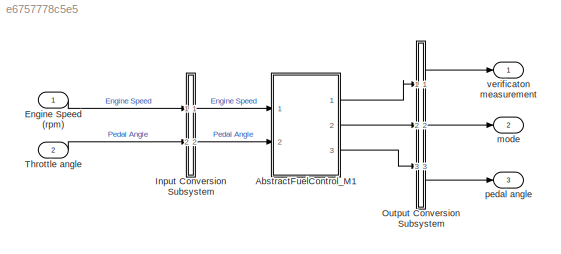
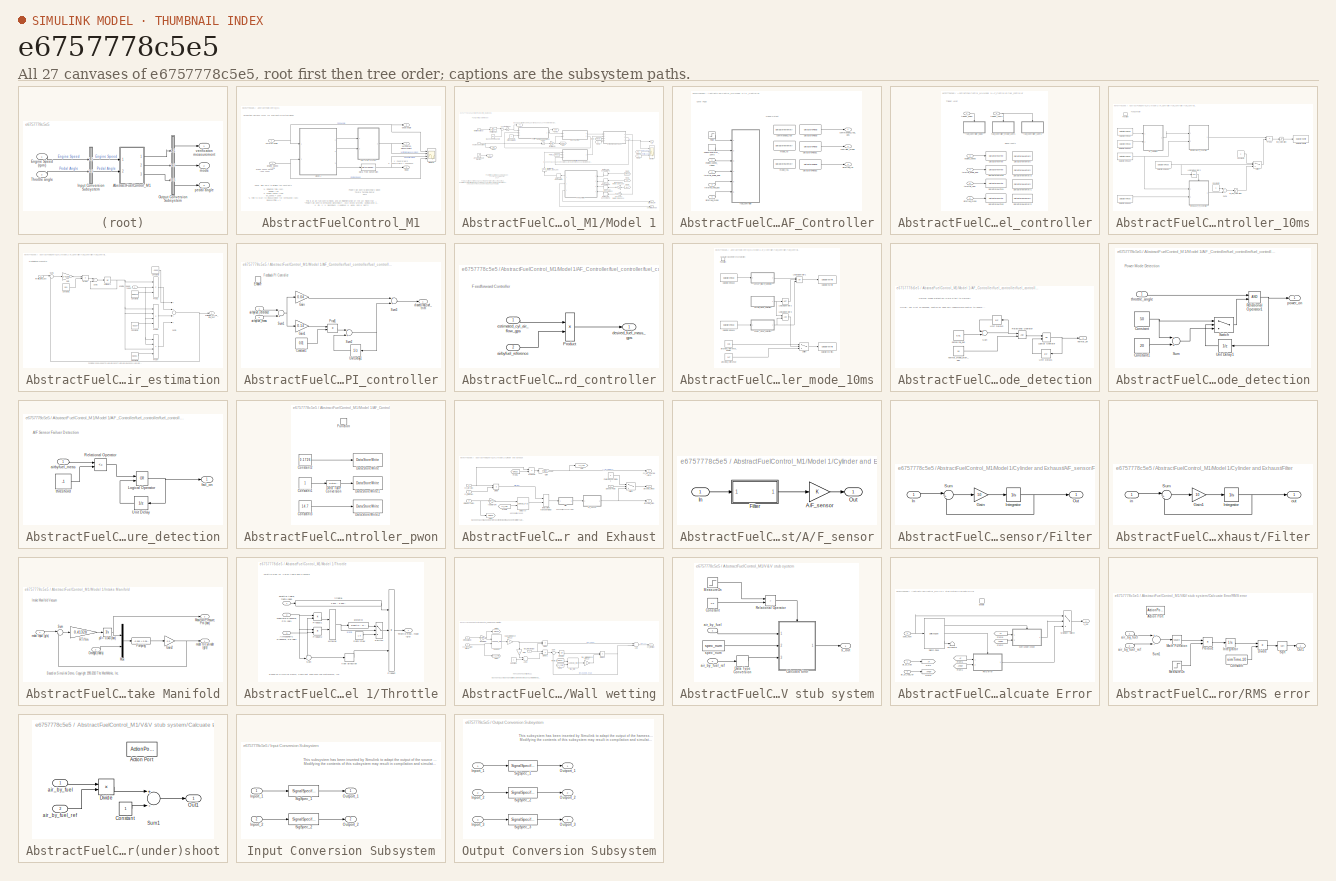
[diagram: thumbnail index - all 27 canvases of the model, root first then tree order]
MODEL slx_e6757778c5e5
KIND model
CONFIG AbsTol = 1e-06
CONFIG EnableMultiTasking = off
CONFIG FixedStep = 5e-05
CONFIG MaxStep = auto
CONFIG MinStep = auto
CONFIG RelTol = 1e-06
CONFIG SampleTimeConstraint = Unconstrained
CONFIG Solver = ode15s
CONFIG SolverName = ode15s
CONFIG StartTime = 0.0
CONFIG StopTime = simTime
BLOCK [SubSystem] AbstractFuelControl_M1
  Ports = [2, 3]
  Priority = 1
  RequestExecContextInheritance = off
  TreatAsAtomicUnit = on
BLOCK [DataTypeConversion] AbstractFuelControl_M1/Data Type Conversion
  Priority = 188
  RndMeth = Floor
  SaturateOnIntegerOverflow = off
BLOCK [Inport] AbstractFuelControl_M1/Engine Speed (rpm)
  IconDisplay = Port number
  OutDataTypeStr = double
  PortDimensions = 1
  SampleTime = [0,0]
  SamplingMode = Sample based
  SignalType = real
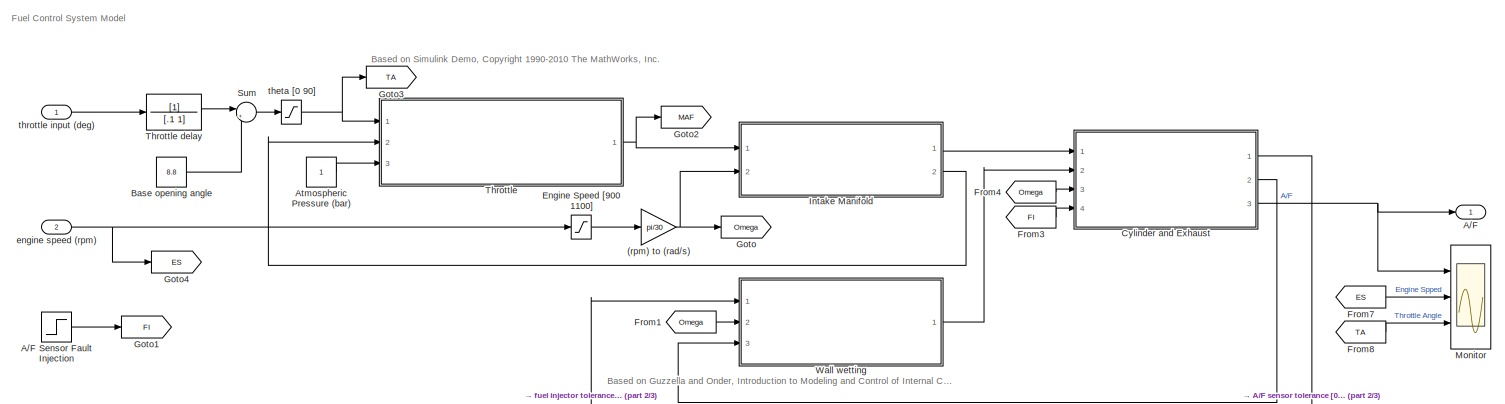
[diagram: AbstractFuelControl_M1/Model 1 - part 1/3, full width, top band]
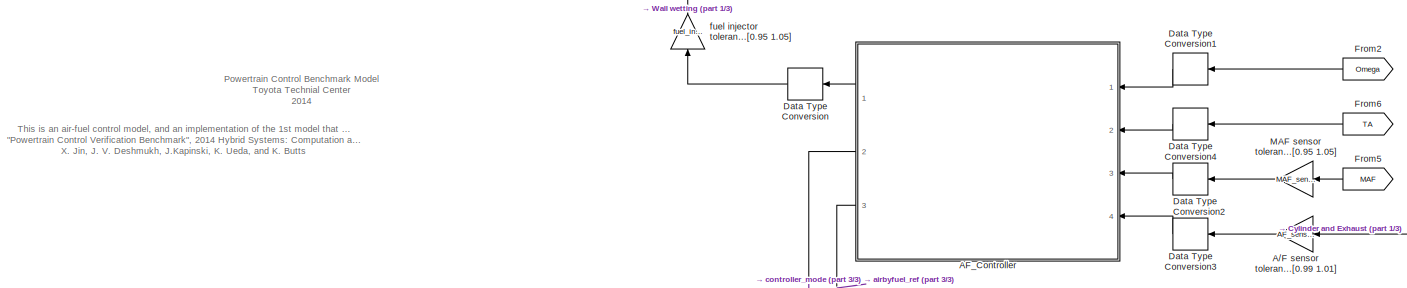
[diagram: AbstractFuelControl_M1/Model 1 - part 2/3, full width, bottom band]
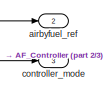
[diagram: AbstractFuelControl_M1/Model 1 - part 3/3, bottom right region]
BLOCK [SubSystem] AbstractFuelControl_M1/Model 1
  Ports = [2, 3]
  Priority = 2
  RequestExecContextInheritance = off
  TreatAsAtomicUnit = on
BLOCK [Gain] AbstractFuelControl_M1/Model 1/(rpm) to (rad//s)
  Gain = pi/30
  OutDataTypeStr = Inherit: Inherit via internal rule
  ParamDataTypeStr = Inherit: Inherit via internal rule
  Priority = 11
  SaturateOnIntegerOverflow = off
BLOCK [Outport] AbstractFuelControl_M1/Model 1/A//F
  IconDisplay = Port number
BLOCK [Step] AbstractFuelControl_M1/Model 1/A//F Sensor Fault Injection
  AttributesFormatString = 1: Failure\n0: Normal
  Priority = 12
  SampleTime = 0
  Time = fault_time
BLOCK [Gain] AbstractFuelControl_M1/Model 1/A//F sensor tolerance [0.99 1.01]
  Gain = AF_sensor_tol
  OutDataTypeStr = Inherit: Inherit via internal rule
  ParamDataTypeStr = Inherit: Inherit via internal rule
  Priority = 15
  SaturateOnIntegerOverflow = off
BLOCK [SubSystem] AbstractFuelControl_M1/Model 1/AF_Controller
  Ports = [4, 3]
  Priority = 33
  RequestExecContextInheritance = off
  TreatAsAtomicUnit = on
BLOCK [DataStoreRead] AbstractFuelControl_M1/Model 1/AF_Controller/DataStoreRead
  AttributesFormatString = Priority = %<Priority>
  DataStoreName = commanded_fuel
  Ports = [0, 1]
  Priority = 128
BLOCK [DataStoreRead] AbstractFuelControl_M1/Model 1/AF_Controller/DataStoreRead1
  AttributesFormatString = Priority = %<Priority>
  DataStoreName = controller_mode
  Ports = [0, 1]
  Priority = 129
BLOCK [DataStoreRead] AbstractFuelControl_M1/Model 1/AF_Controller/DataStoreRead2
  AttributesFormatString = Priority = %<Priority>
  DataStoreName = airbyfuel_ref
  Ports = [0, 1]
  Priority = 130
BLOCK [DiscretePulseGenerator] AbstractFuelControl_M1/Model 1/AF_Controller/PulseGenerator_10ms
  Period = 0.01
  PhaseDelay = 0.01
  Ports = [0, 1]
  Priority = 35
  PulseType = Time based
  PulseWidth = 50
BLOCK [Step] AbstractFuelControl_M1/Model 1/AF_Controller/Pwon
  Priority = 34
  SampleTime = 0
  Time = 0.001
BLOCK [Inport] AbstractFuelControl_M1/Model 1/AF_Controller/airbyfuel_meas
  IconDisplay = Port number
  Port = 4
  SamplingMode = Sample based
  SignalType = real
BLOCK [Outport] AbstractFuelControl_M1/Model 1/AF_Controller/airbyfuel_ref
  IconDisplay = Port number
  Port = 3
  SamplingMode = Sample based
  SignalType = real
BLOCK [DataStoreMemory] AbstractFuelControl_M1/Model 1/AF_Controller/commanded_fuel
  AttributesFormatString = commanded_fuel
  DataStoreName = commanded_fuel
  InitialValue = 0.1726
  OutDataTypeStr = single
  Priority = 131
  ShowAdditionalParam = off
  SignalType = real
BLOCK [Outport] AbstractFuelControl_M1/Model 1/AF_Controller/commanded_fuel_gps
  IconDisplay = Port number
  SamplingMode = Sample based
  SignalType = real
BLOCK [Outport] AbstractFuelControl_M1/Model 1/AF_Controller/controller_mode
  IconDisplay = Port number
  Port = 2
  SamplingMode = Sample based
  SignalType = real
BLOCK [Inport] AbstractFuelControl_M1/Model 1/AF_Controller/engine_speed_radps
  IconDisplay = Port number
  SamplingMode = Sample based
  SignalType = real
BLOCK [SubSystem] AbstractFuelControl_M1/Model 1/AF_Controller/fuel_controller
  AttributesFormatString = Priority = %<Priority>
  Ports = [6]
  Priority = 36
  RequestExecContextInheritance = off
  TreatAsAtomicUnit = on
BLOCK [DataStoreMemory] AbstractFuelControl_M1/Model 1/AF_Controller/fuel_controller/DataStoreMemory
  AttributesFormatString = engine speed
  DataStoreName = engine_speed
  OutDataTypeStr = single
  Priority = 124
  ShowAdditionalParam = off
  SignalType = real
BLOCK [DataStoreMemory] AbstractFuelControl_M1/Model 1/AF_Controller/fuel_controller/DataStoreMemory1
  AttributesFormatString = throttle flow
  DataStoreName = throttle_flow
  OutDataTypeStr = single
  Priority = 125
  ShowAdditionalParam = off
  SignalType = real
BLOCK [DataStoreMemory] AbstractFuelControl_M1/Model 1/AF_Controller/fuel_controller/DataStoreMemory2
  AttributesFormatString = lambda_meas
  DataStoreName = airbyfuel_meas
  OutDataTypeStr = single
  Priority = 126
  ShowAdditionalParam = off
  SignalType = real
BLOCK [DataStoreMemory] AbstractFuelControl_M1/Model 1/AF_Controller/fuel_controller/DataStoreMemory3
  AttributesFormatString = throttle flow
  DataStoreName = throttle_angle
  OutDataTypeStr = single
  Priority = 127
  ShowAdditionalParam = off
  SignalType = real
BLOCK [DataStoreWrite] AbstractFuelControl_M1/Model 1/AF_Controller/fuel_controller/DataStoreWrite
  AttributesFormatString = Priority = %<Priority>
  DataStoreName = engine_speed
  Ports = [1]
  Priority = 37
BLOCK [DataStoreWrite] AbstractFuelControl_M1/Model 1/AF_Controller/fuel_controller/DataStoreWrite1
  AttributesFormatString = Priority = %<Priority>
  DataStoreName = throttle_flow
  Ports = [1]
  Priority = 39
BLOCK [DataStoreWrite] AbstractFuelControl_M1/Model 1/AF_Controller/fuel_controller/DataStoreWrite2
  AttributesFormatString = Priority = %<Priority>
  DataStoreName = airbyfuel_meas
  Ports = [1]
  Priority = 40
BLOCK [DataStoreWrite] AbstractFuelControl_M1/Model 1/AF_Controller/fuel_controller/DataStoreWrite3
  AttributesFormatString = Priority = %<Priority>
  DataStoreName = throttle_angle
  Ports = [1]
  Priority = 38
BLOCK [Inport] AbstractFuelControl_M1/Model 1/AF_Controller/fuel_controller/airbyfuel_meas
  IconDisplay = Port number
  Port = 6
  SamplingMode = Sample based
  SignalType = real
BLOCK [Inport] AbstractFuelControl_M1/Model 1/AF_Controller/fuel_controller/engine_speed
  IconDisplay = Port number
  Port = 3
  SamplingMode = Sample based
  SignalType = real
BLOCK [SubSystem] AbstractFuelControl_M1/Model 1/AF_Controller/fuel_controller/fuel_controller_10ms
  AttributesFormatString = Priority = %<Priority>
  Ports = [0, 0, 0, 1]
  Priority = 83
  RequestExecContextInheritance = off
  TreatAsAtomicUnit = on
BLOCK [Constant] AbstractFuelControl_M1/Model 1/AF_Controller/fuel_controller/fuel_controller_10ms/Constant2
  OutDataTypeStr = single
  Priority = 106
BLOCK [Constant] AbstractFuelControl_M1/Model 1/AF_Controller/fuel_controller/fuel_controller_10ms/Constant3
  OutDataTypeStr = single
  Priority = 104
BLOCK [DataStoreRead] AbstractFuelControl_M1/Model 1/AF_Controller/fuel_controller/fuel_controller_10ms/DataStoreRead
  DataStoreName = throttle_flow
  Ports = [0, 1]
  Priority = 84
BLOCK [DataStoreRead] AbstractFuelControl_M1/Model 1/AF_Controller/fuel_controller/fuel_controller_10ms/DataStoreRead1
  DataStoreName = engine_speed
  Ports = [0, 1]
  Priority = 85
BLOCK [DataStoreRead] AbstractFuelControl_M1/Model 1/AF_Controller/fuel_controller/fuel_controller_10ms/DataStoreRead2
  DataStoreName = airbyfuel_meas
  Ports = [0, 1]
  Priority = 107
BLOCK [DataStoreRead] AbstractFuelControl_M1/Model 1/AF_Controller/fuel_controller/fuel_controller_10ms/DataStoreRead3
  AttributesFormatString = 1: Feedforward\n0: Feedforward + Feedback
  DataStoreName = controller_mode
  Ports = [0, 1]
  Priority = 105
BLOCK [DataStoreRead] AbstractFuelControl_M1/Model 1/AF_Controller/fuel_controller/fuel_controller_10ms/DataStoreRead4
  DataStoreName = airbyfuel_ref
  Ports = [0, 1]
  Priority = 101
BLOCK [DataStoreWrite] AbstractFuelControl_M1/Model 1/AF_Controller/fuel_controller/fuel_controller_10ms/DataStoreWrite
  DataStoreName = commanded_fuel
  Ports = [1]
  Priority = 123
BLOCK [TriggerPort] AbstractFuelControl_M1/Model 1/AF_Controller/fuel_controller/fuel_controller_10ms/Function
  Ports = []
  StatesWhenEnabling = held
  VariantControl = (inherit)
BLOCK [Logic] AbstractFuelControl_M1/Model 1/AF_Controller/fuel_controller/fuel_controller_10ms/Logical Operator2
  AllPortsSameDT = off
  Operator = NOT
  OutDataTypeStr = boolean
  Ports = [1, 1]
  Priority = 108
BLOCK [Product] AbstractFuelControl_M1/Model 1/AF_Controller/fuel_controller/fuel_controller_10ms/Prod1
  InputSameDT = off
  OutDataTypeStr = Inherit: Inherit via back propagation
  Ports = [2, 1]
  Priority = 121
  RndMeth = Simplest
  SaturateOnIntegerOverflow = off
BLOCK [Sum] AbstractFuelControl_M1/Model 1/AF_Controller/fuel_controller/fuel_controller_10ms/Sum1
  OutDataTypeStr = Inherit: Inherit via back propagation
  Ports = [2, 1]
  RndMeth = Simplest
  SaturateOnIntegerOverflow = off
BLOCK [Switch] AbstractFuelControl_M1/Model 1/AF_Controller/fuel_controller/fuel_controller_10ms/Switch
  Criteria = u2 ~= 0
  InputSameDT = off
  Priority = 120
  SaturateOnIntegerOverflow = off
  Threshold = 0.5
BLOCK [SubSystem] AbstractFuelControl_M1/Model 1/AF_Controller/fuel_controller/fuel_controller_10ms/air_estimation
  Ports = [2, 1]
  Priority = 86
  RequestExecContextInheritance = off
  TreatAsAtomicUnit = on
BLOCK [Constant] AbstractFuelControl_M1/Model 1/AF_Controller/fuel_controller/fuel_controller_10ms/air_estimation/Constant1
  AttributesFormatString = Sample Time (s)
  OutDataTypeStr = single
  Priority = 87
  SampleTime = -1
  UserDataPersistent = on
  Value = 0.01
BLOCK [Constant] AbstractFuelControl_M1/Model 1/AF_Controller/fuel_controller/fuel_controller_10ms/air_estimation/Constant2
  OutDataTypeStr = single
  Priority = 88
  SampleTime = -1
  UserDataPersistent = on
  Value = -0.366
BLOCK [Constant] AbstractFuelControl_M1/Model 1/AF_Controller/fuel_controller/fuel_controller_10ms/air_estimation/Constant3
  OutDataTypeStr = single
  Priority = 89
  SampleTime = -1
  UserDataPersistent = on
  Value = 0.08979
BLOCK [Constant] AbstractFuelControl_M1/Model 1/AF_Controller/fuel_controller/fuel_controller_10ms/air_estimation/Constant4
  OutDataTypeStr = single
  Priority = 90
  SampleTime = -1
  UserDataPersistent = on
  Value = -0.0337
BLOCK [Constant] AbstractFuelControl_M1/Model 1/AF_Controller/fuel_controller/fuel_controller_10ms/air_estimation/Constant5
  OutDataTypeStr = single
  Priority = 91
  SampleTime = -1
  UserDataPersistent = on
  Value = 0.0001
BLOCK [Gain] AbstractFuelControl_M1/Model 1/AF_Controller/fuel_controller/fuel_controller_10ms/air_estimation/Gain
  AttributesFormatString = RT/Vm
  Gain = 0.41328
  OutDataTypeStr = Inherit: Inherit via back propagation
  ParamDataTypeStr = single
  Priority = 98
  RndMeth = Simplest
  UserDataPersistent = on
BLOCK [Product] AbstractFuelControl_M1/Model 1/AF_Controller/fuel_controller/fuel_controller_10ms/air_estimation/Prod1
  InputSameDT = off
  OutDataTypeStr = Inherit: Inherit via back propagation
  Ports = [2, 1]
  Priority = 99
  RndMeth = Simplest
  SaturateOnIntegerOverflow = off
BLOCK [Product] AbstractFuelControl_M1/Model 1/AF_Controller/fuel_controller/fuel_controller_10ms/air_estimation/Prod2
  InputSameDT = off
  Inputs = 3
  OutDataTypeStr = Inherit: Inherit via back propagation
  Ports = [3, 1]
  Priority = 93
  RndMeth = Simplest
  SaturateOnIntegerOverflow = off
BLOCK [Product] AbstractFuelControl_M1/Model 1/AF_Controller/fuel_controller/fuel_controller_10ms/air_estimation/Prod3
  InputSameDT = off
  Inputs = 4
  OutDataTypeStr = Inherit: Inherit via back propagation
  Ports = [4, 1]
  Priority = 94
  RndMeth = Simplest
  SaturateOnIntegerOverflow = off
BLOCK [Product] AbstractFuelControl_M1/Model 1/AF_Controller/fuel_controller/fuel_controller_10ms/air_estimation/Prod4
  InputSameDT = off
  Inputs = 4
  OutDataTypeStr = Inherit: Inherit via back propagation
  Ports = [4, 1]
  Priority = 95
  RndMeth = Simplest
  SaturateOnIntegerOverflow = off
BLOCK [Sum] AbstractFuelControl_M1/Model 1/AF_Controller/fuel_controller/fuel_controller_10ms/air_estimation/Sum1
  IconShape = round
  Inputs = |+-
  OutDataTypeStr = Inherit: Inherit via back propagation
  Ports = [2, 1]
  Priority = 97
  RndMeth = Simplest
  SaturateOnIntegerOverflow = off
BLOCK [Sum] AbstractFuelControl_M1/Model 1/AF_Controller/fuel_controller/fuel_controller_10ms/air_estimation/Sum2
  OutDataTypeStr = Inherit: Inherit via back propagation
  Ports = [2, 1]
  Priority = 100
  RndMeth = Simplest
  SaturateOnIntegerOverflow = off
BLOCK [Sum] AbstractFuelControl_M1/Model 1/AF_Controller/fuel_controller/fuel_controller_10ms/air_estimation/Sum3
  Inputs = ++++
  OutDataTypeStr = Inherit: Inherit via back propagation
  Ports = [4, 1]
  Priority = 96
  RndMeth = Simplest
  SaturateOnIntegerOverflow = off
BLOCK [UnitDelay] AbstractFuelControl_M1/Model 1/AF_Controller/fuel_controller/fuel_controller_10ms/air_estimation/UnitDelay1
  AttributesFormatString = p0 = %<InitialCondition> (bar)
  HasFrameUpgradeWarning = on
  InitialCondition = 0.982
  Priority = 92
  SampleTime = -1
  UserDataPersistent = on
BLOCK [Inport] AbstractFuelControl_M1/Model 1/AF_Controller/fuel_controller/fuel_controller_10ms/air_estimation/engine_speed_radps
  IconDisplay = Port number
  Port = 2
  SamplingMode = Sample based
  SignalType = real
BLOCK [Outport] AbstractFuelControl_M1/Model 1/AF_Controller/fuel_controller/fuel_controller_10ms/air_estimation/estimated_cyl_air_flow_gps
  IconDisplay = Port number
  SamplingMode = Sample based
  SignalType = real
BLOCK [Inport] AbstractFuelControl_M1/Model 1/AF_Controller/fuel_controller/fuel_controller_10ms/air_estimation/throttle_flow_gps
  IconDisplay = Port number
  SamplingMode = Sample based
  SignalType = real
BLOCK [Saturate] AbstractFuelControl_M1/Model 1/AF_Controller/fuel_controller/fuel_controller_10ms/fb_fuel_saturation
  AttributesFormatString = y >= 0
  InputPortMap = u0
  LowerLimit = 0
  Ports = [1, 1]
  RndMeth = Round
  UpperLimit = inf
BLOCK [SubSystem] AbstractFuelControl_M1/Model 1/AF_Controller/fuel_controller/fuel_controller_10ms/feedback_PI_controller
  Ports = [2, 1, 1]
  Priority = 110
  RequestExecContextInheritance = off
  TreatAsAtomicUnit = on
BLOCK [Constant] AbstractFuelControl_M1/Model 1/AF_Controller/fuel_controller/fuel_controller_10ms/feedback_PI_controller/Constant1
  AttributesFormatString = Sample Time [s]
  OutDataTypeStr = single
  Priority = 111
  SampleTime = -1
  UserDataPersistent = on
  Value = 0.01
BLOCK [EnablePort] AbstractFuelControl_M1/Model 1/AF_Controller/fuel_controller/fuel_controller_10ms/feedback_PI_controller/Enable
  Ports = []
BLOCK [Gain] AbstractFuelControl_M1/Model 1/AF_Controller/fuel_controller/fuel_controller_10ms/feedback_PI_controller/Gain
  AttributesFormatString = Proportional Gain
  Gain = 0.04
  OutDataTypeStr = Inherit: Inherit via back propagation
  ParamDataTypeStr = single
  Priority = 113
  RndMeth = Simplest
  UserDataPersistent = on
BLOCK [Gain] AbstractFuelControl_M1/Model 1/AF_Controller/fuel_controller/fuel_controller_10ms/feedback_PI_controller/Gain1
  AttributesFormatString = Integral Gain
  Gain = 0.14
  OutDataTypeStr = Inherit: Inherit via back propagation
  ParamDataTypeStr = single
  Priority = 114
  RndMeth = Simplest
  UserDataPersistent = on
BLOCK [Product] AbstractFuelControl_M1/Model 1/AF_Controller/fuel_controller/fuel_controller_10ms/feedback_PI_controller/Prod1
  InputSameDT = off
  OutDataTypeStr = Inherit: Inherit via back propagation
  Ports = [2, 1]
  Priority = 115
  RndMeth = Simplest
  SaturateOnIntegerOverflow = off
BLOCK [Sum] AbstractFuelControl_M1/Model 1/AF_Controller/fuel_controller/fuel_controller_10ms/feedback_PI_controller/Sum1
  Inputs = -+
  OutDataTypeStr = Inherit: Inherit via back propagation
  Ports = [2, 1]
  Priority = 112
  RndMeth = Simplest
  SaturateOnIntegerOverflow = off
BLOCK [Sum] AbstractFuelControl_M1/Model 1/AF_Controller/fuel_controller/fuel_controller_10ms/feedback_PI_controller/Sum2
  OutDataTypeStr = Inherit: Inherit via back propagation
  Ports = [2, 1]
  Priority = 117
  RndMeth = Simplest
  SaturateOnIntegerOverflow = off
BLOCK [Sum] AbstractFuelControl_M1/Model 1/AF_Controller/fuel_controller/fuel_controller_10ms/feedback_PI_controller/Sum3
  OutDataTypeStr = Inherit: Inherit via back propagation
  Ports = [2, 1]
  Priority = 118
  RndMeth = Simplest
  SaturateOnIntegerOverflow = off
BLOCK [UnitDelay] AbstractFuelControl_M1/Model 1/AF_Controller/fuel_controller/fuel_controller_10ms/feedback_PI_controller/UnitDelay1
  AttributesFormatString = Initial Value = 0
  HasFrameUpgradeWarning = on
  Priority = 116
  SampleTime = -1
  UserDataPersistent = on
BLOCK [Inport] AbstractFuelControl_M1/Model 1/AF_Controller/fuel_controller/fuel_controller_10ms/feedback_PI_controller/airbyfuel_meas
  IconDisplay = Port number
  Port = 2
  SamplingMode = Sample based
  SignalType = real
BLOCK [Inport] AbstractFuelControl_M1/Model 1/AF_Controller/fuel_controller/fuel_controller_10ms/feedback_PI_controller/airbyfuel_reference
  IconDisplay = Port number
  SamplingMode = Sample based
  SignalType = real
BLOCK [Outport] AbstractFuelControl_M1/Model 1/AF_Controller/fuel_controller/fuel_controller_10ms/feedback_PI_controller/closed_loop_fuel_trim
  IconDisplay = Port number
  SamplingMode = Sample based
  SignalType = real
BLOCK [SubSystem] AbstractFuelControl_M1/Model 1/AF_Controller/fuel_controller/fuel_controller_10ms/feedforward_controller
  Ports = [2, 1]
  Priority = 102
  RequestExecContextInheritance = off
  TreatAsAtomicUnit = on
BLOCK [Product] AbstractFuelControl_M1/Model 1/AF_Controller/fuel_controller/fuel_controller_10ms/feedforward_controller/Product
  InputSameDT = off
  Inputs = */
  Ports = [2, 1]
  Priority = 103
  RndMeth = Simplest
BLOCK [Inport] AbstractFuelControl_M1/Model 1/AF_Controller/fuel_controller/fuel_controller_10ms/feedforward_controller/airbyfuel_reference
  IconDisplay = Port number
  Port = 2
  SamplingMode = Sample based
  SignalType = real
BLOCK [Outport] AbstractFuelControl_M1/Model 1/AF_Controller/fuel_controller/fuel_controller_10ms/feedforward_controller/desired_fuel_mass_gps
  IconDisplay = Port number
  SamplingMode = Sample based
  SignalType = real
BLOCK [Inport] AbstractFuelControl_M1/Model 1/AF_Controller/fuel_controller/fuel_controller_10ms/feedforward_controller/estimated_cyl_air_flow_gps
  IconDisplay = Port number
  SamplingMode = Sample based
  SignalType = real
BLOCK [Saturate] AbstractFuelControl_M1/Model 1/AF_Controller/fuel_controller/fuel_controller_10ms/fuel_saturation
  AttributesFormatString = 0.13 <=\ncommanded_fuel\n<= 1.66
  InputPortMap = u0
  LowerLimit = 0.13
  Ports = [1, 1]
  Priority = 122
  RndMeth = Round
  UpperLimit = 1.66
BLOCK [SubSystem] AbstractFuelControl_M1/Model 1/AF_Controller/fuel_controller/fuel_controller_mode_10ms
  AttributesFormatString = Priority = %<Priority>
  Ports = [0, 0, 0, 1]
  Priority = 51
  RequestExecContextInheritance = off
  TreatAsAtomicUnit = on
BLOCK [DataStoreRead] AbstractFuelControl_M1/Model 1/AF_Controller/fuel_controller/fuel_controller_mode_10ms/DataStoreRead2
  DataStoreName = airbyfuel_meas
  Ports = [0, 1]
  Priority = 52
BLOCK [DataStoreRead] AbstractFuelControl_M1/Model 1/AF_Controller/fuel_controller/fuel_controller_mode_10ms/DataStoreRead4
  DataStoreName = throttle_angle
  Ports = [0, 1]
  Priority = 67
BLOCK [DataStoreWrite] AbstractFuelControl_M1/Model 1/AF_Controller/fuel_controller/fuel_controller_mode_10ms/DataStoreWrite
  AttributesFormatString = 1: Feedforward\n0: Feedforward + Feedback
  DataStoreName = controller_mode
  Ports = [1]
  Priority = 76
BLOCK [DataStoreWrite] AbstractFuelControl_M1/Model 1/AF_Controller/fuel_controller/fuel_controller_mode_10ms/DataStoreWrite1
  DataStoreName = airbyfuel_ref
  Ports = [1]
  Priority = 81
BLOCK [TriggerPort] AbstractFuelControl_M1/Model 1/AF_Controller/fuel_controller/fuel_controller_mode_10ms/Function
  Ports = []
  StatesWhenEnabling = held
  VariantControl = (inherit)
BLOCK [Logic] AbstractFuelControl_M1/Model 1/AF_Controller/fuel_controller/fuel_controller_mode_10ms/Logical Operator1
  AllPortsSameDT = off
  Inputs = 3
  Operator = OR
  OutDataTypeStr = boolean
  Ports = [3, 1]
  Priority = 75
BLOCK [Logic] AbstractFuelControl_M1/Model 1/AF_Controller/fuel_controller/fuel_controller_mode_10ms/Logical Operator2
  AllPortsSameDT = off
  Operator = NOT
  OutDataTypeStr = boolean
  Ports = [1, 1]
  Priority = 66
BLOCK [Logic] AbstractFuelControl_M1/Model 1/AF_Controller/fuel_controller/fuel_controller_mode_10ms/Logical Operator3
  AllPortsSameDT = off
  OutDataTypeStr = boolean
  Ports = [2, 1]
  Priority = 77
BLOCK [Switch] AbstractFuelControl_M1/Model 1/AF_Controller/fuel_controller/fuel_controller_mode_10ms/Switch
  Criteria = u2 ~= 0
  InputSameDT = off
  Priority = 80
  SaturateOnIntegerOverflow = off
BLOCK [Constant] AbstractFuelControl_M1/Model 1/AF_Controller/fuel_controller/fuel_controller_mode_10ms/airbyfuel_reference
  OutDataTypeStr = single
  SampleTime = -1
  UserDataPersistent = on
  Value = 14.7
BLOCK [Constant] AbstractFuelControl_M1/Model 1/AF_Controller/fuel_controller/fuel_controller_mode_10ms/airbyfuel_reference_power
  OutDataTypeStr = single
  SampleTime = -1
  UserDataPersistent = on
  Value = 12.5
BLOCK [SubSystem] AbstractFuelControl_M1/Model 1/AF_Controller/fuel_controller/fuel_controller_mode_10ms/normal_mode_detection
  AttributesFormatString = 0: Feedforward\n1: Feedforward + Feedback
  Ports = [0, 1]
  Priority = 58
  RequestExecContextInheritance = off
  TreatAsAtomicUnit = on
BLOCK [Logic] AbstractFuelControl_M1/Model 1/AF_Controller/fuel_controller/fuel_controller_mode_10ms/normal_mode_detection/Logical Operator
  Operator = OR
  OutDataTypeStr = boolean
  Ports = [2, 1]
  Priority = 65
BLOCK [RelationalOperator] AbstractFuelControl_M1/Model 1/AF_Controller/fuel_controller/fuel_controller_mode_10ms/normal_mode_detection/Relational Operator
  InputSameDT = off
  OutDataTypeStr = boolean
  Ports = [2, 1]
  Priority = 63
BLOCK [Sum] AbstractFuelControl_M1/Model 1/AF_Controller/fuel_controller/fuel_controller_mode_10ms/normal_mode_detection/Sum
  InputSameDT = off
  OutDataTypeStr = Inherit: Inherit via internal rule
  Ports = [2, 1]
  Priority = 61
  SaturateOnIntegerOverflow = off
BLOCK [UnitDelay] AbstractFuelControl_M1/Model 1/AF_Controller/fuel_controller/fuel_controller_mode_10ms/normal_mode_detection/Unit Delay1
  AttributesFormatString = Initial Value = 0
  HasFrameUpgradeWarning = on
  Priority = 64
  SampleTime = -1
BLOCK [UnitDelay] AbstractFuelControl_M1/Model 1/AF_Controller/fuel_controller/fuel_controller_mode_10ms/normal_mode_detection/Unit Delay2
  AttributesFormatString = Initial Value = 0
  HasFrameUpgradeWarning = on
  Priority = 59
  SampleTime = -1
BLOCK [Constant] AbstractFuelControl_M1/Model 1/AF_Controller/fuel_controller/fuel_controller_mode_10ms/normal_mode_detection/normal_mode_start_sec
  AttributesFormatString = Normal Mode Start Time (s)
  OutDataTypeStr = single
  Priority = 62
  SampleTime = -1
  UserDataPersistent = on
  Value = 10
BLOCK [Outport] AbstractFuelControl_M1/Model 1/AF_Controller/fuel_controller/fuel_controller_mode_10ms/normal_mode_detection/normal_on
  IconDisplay = Port number
BLOCK [Constant] AbstractFuelControl_M1/Model 1/AF_Controller/fuel_controller/fuel_controller_mode_10ms/normal_mode_detection/sampling_sec
  AttributesFormatString = Sample Time (s)
  OutDataTypeStr = single
  Priority = 60
  SampleTime = -1
  UserDataPersistent = on
  Value = 0.01
BLOCK [SubSystem] AbstractFuelControl_M1/Model 1/AF_Controller/fuel_controller/fuel_controller_mode_10ms/power_mode_detection
  AttributesFormatString = 1: Feedforward\n0: Feedforward + Feedback
  Ports = [1, 1]
  Priority = 68
  RequestExecContextInheritance = off
  TreatAsAtomicUnit = on
BLOCK [Constant] AbstractFuelControl_M1/Model 1/AF_Controller/fuel_controller/fuel_controller_mode_10ms/power_mode_detection/Constant
  AttributesFormatString = Base
  OutDataTypeStr = single
  Priority = 69
  Value = 50
BLOCK [Constant] AbstractFuelControl_M1/Model 1/AF_Controller/fuel_controller/fuel_controller_mode_10ms/power_mode_detection/Constant1
  AttributesFormatString = Hysteresis
  OutDataTypeStr = single
  Priority = 70
  Value = 20
BLOCK [RelationalOperator] AbstractFuelControl_M1/Model 1/AF_Controller/fuel_controller/fuel_controller_mode_10ms/power_mode_detection/Relational Operator1
  InputSameDT = off
  OutDataTypeStr = boolean
  Ports = [2, 1]
  Priority = 74
BLOCK [Sum] AbstractFuelControl_M1/Model 1/AF_Controller/fuel_controller/fuel_controller_mode_10ms/power_mode_detection/Sum
  InputSameDT = off
  OutDataTypeStr = Inherit: Inherit via internal rule
  Ports = [2, 1]
  Priority = 72
  SaturateOnIntegerOverflow = off
BLOCK [Switch] AbstractFuelControl_M1/Model 1/AF_Controller/fuel_controller/fuel_controller_mode_10ms/power_mode_detection/Switch
  Criteria = u2 ~= 0
  InputSameDT = off
  Priority = 73
  SaturateOnIntegerOverflow = off
BLOCK [UnitDelay] AbstractFuelControl_M1/Model 1/AF_Controller/fuel_controller/fuel_controller_mode_10ms/power_mode_detection/Unit Delay1
  AttributesFormatString = Initial Value = 0
  HasFrameUpgradeWarning = on
  Priority = 71
  SampleTime = -1
BLOCK [Outport] AbstractFuelControl_M1/Model 1/AF_Controller/fuel_controller/fuel_controller_mode_10ms/power_mode_detection/power_on
  IconDisplay = Port number
BLOCK [Inport] AbstractFuelControl_M1/Model 1/AF_Controller/fuel_controller/fuel_controller_mode_10ms/power_mode_detection/throttle_angle
  IconDisplay = Port number
BLOCK [SubSystem] AbstractFuelControl_M1/Model 1/AF_Controller/fuel_controller/fuel_controller_mode_10ms/sensor_failure_detection
  AttributesFormatString = 1: Feedforward\n0: Feedforward + Feedback
  Ports = [1, 1]
  Priority = 53
  RequestExecContextInheritance = off
  TreatAsAtomicUnit = on
BLOCK [Logic] AbstractFuelControl_M1/Model 1/AF_Controller/fuel_controller/fuel_controller_mode_10ms/sensor_failure_detection/Logical Operator
  Operator = OR
  OutDataTypeStr = boolean
  Ports = [2, 1]
  Priority = 57
BLOCK [RelationalOperator] AbstractFuelControl_M1/Model 1/AF_Controller/fuel_controller/fuel_controller_mode_10ms/sensor_failure_detection/Relational Operator
  InputSameDT = off
  Operator = <=
  OutDataTypeStr = boolean
  Ports = [2, 1]
  Priority = 55
BLOCK [UnitDelay] AbstractFuelControl_M1/Model 1/AF_Controller/fuel_controller/fuel_controller_mode_10ms/sensor_failure_detection/Unit Delay
  AttributesFormatString = Initial Value = 0
  HasFrameUpgradeWarning = on
  Priority = 56
  SampleTime = -1
BLOCK [Inport] AbstractFuelControl_M1/Model 1/AF_Controller/fuel_controller/fuel_controller_mode_10ms/sensor_failure_detection/airbyfuel_meas
  IconDisplay = Port number
BLOCK [Outport] AbstractFuelControl_M1/Model 1/AF_Controller/fuel_controller/fuel_controller_mode_10ms/sensor_failure_detection/fail_on
  IconDisplay = Port number
BLOCK [Constant] AbstractFuelControl_M1/Model 1/AF_Controller/fuel_controller/fuel_controller_mode_10ms/sensor_failure_detection/threshold
  OutDataTypeStr = single
  Priority = 54
  Value = -1
BLOCK [SubSystem] AbstractFuelControl_M1/Model 1/AF_Controller/fuel_controller/fuel_controller_pwon
  AttributesFormatString = Priority = %<Priority>
  Ports = [0, 0, 0, 1]
  Priority = 42
  RequestExecContextInheritance = off
  TreatAsAtomicUnit = on
BLOCK [Constant] AbstractFuelControl_M1/Model 1/AF_Controller/fuel_controller/fuel_controller_pwon/Constant1
  OutDataTypeStr = single
  Priority = 43
  SampleTime = -1
  UserDataPersistent = on
BLOCK [Constant] AbstractFuelControl_M1/Model 1/AF_Controller/fuel_controller/fuel_controller_pwon/Constant2
  OutDataTypeStr = single
  Priority = 46
  SampleTime = -1
  UserDataPersistent = on
  Value = 0.1726
BLOCK [Constant] AbstractFuelControl_M1/Model 1/AF_Controller/fuel_controller/fuel_controller_pwon/Constant3
  OutDataTypeStr = single
  Priority = 48
  SampleTime = -1
  UserDataPersistent = on
  Value = 14.7
BLOCK [DataTypeConversion] AbstractFuelControl_M1/Model 1/AF_Controller/fuel_controller/fuel_controller_pwon/Data Type Conversion
  OutDataTypeStr = boolean
  Priority = 44
  RndMeth = Floor
  SaturateOnIntegerOverflow = off
BLOCK [DataStoreWrite] AbstractFuelControl_M1/Model 1/AF_Controller/fuel_controller/fuel_controller_pwon/DataStoreWrite
  DataStoreName = commanded_fuel
  Ports = [1]
  Priority = 47
BLOCK [DataStoreWrite] AbstractFuelControl_M1/Model 1/AF_Controller/fuel_controller/fuel_controller_pwon/DataStoreWrite1
  DataStoreName = controller_mode
  Ports = [1]
  Priority = 45
BLOCK [DataStoreWrite] AbstractFuelControl_M1/Model 1/AF_Controller/fuel_controller/fuel_controller_pwon/DataStoreWrite2
  DataStoreName = airbyfuel_ref
  Ports = [1]
  Priority = 49
BLOCK [TriggerPort] AbstractFuelControl_M1/Model 1/AF_Controller/fuel_controller/fuel_controller_pwon/Function
  Ports = []
  StatesWhenEnabling = held
  VariantControl = (inherit)
BLOCK [Inport] AbstractFuelControl_M1/Model 1/AF_Controller/fuel_controller/throttle_angle_deg
  IconDisplay = Port number
  Port = 4
  SamplingMode = Sample based
  SignalType = real
BLOCK [Inport] AbstractFuelControl_M1/Model 1/AF_Controller/fuel_controller/throttle_flow
  IconDisplay = Port number
  Port = 5
  SamplingMode = Sample based
  SignalType = real
BLOCK [Inport] AbstractFuelControl_M1/Model 1/AF_Controller/fuel_controller/trigger_10ms
  IconDisplay = Port number
  Port = 2
  SamplingMode = Sample based
  SignalType = real
BLOCK [Inport] AbstractFuelControl_M1/Model 1/AF_Controller/fuel_controller/trigger_pwon
  IconDisplay = Port number
  SamplingMode = Sample based
  SignalType = real
BLOCK [DataStoreMemory] AbstractFuelControl_M1/Model 1/AF_Controller/mode_fb
  AttributesFormatString = controller_mode
  DataStoreName = controller_mode
  OutDataTypeStr = boolean
  Priority = 132
  ShowAdditionalParam = off
  SignalType = real
BLOCK [DataStoreMemory] AbstractFuelControl_M1/Model 1/AF_Controller/mode_fb1
  AttributesFormatString = airbyfuel_reference
  DataStoreName = airbyfuel_ref
  OutDataTypeStr = single
  Priority = 133
  ShowAdditionalParam = off
  SignalType = real
BLOCK [Inport] AbstractFuelControl_M1/Model 1/AF_Controller/throttle_angle_deg
  IconDisplay = Port number
  Port = 2
  SamplingMode = Sample based
  SignalType = real
BLOCK [Inport] AbstractFuelControl_M1/Model 1/AF_Controller/throttle_flow_gps
  IconDisplay = Port number
  Port = 3
  SamplingMode = Sample based
  SignalType = real
BLOCK [Constant] AbstractFuelControl_M1/Model 1/Atmospheric Pressure (bar)
  Priority = 20
BLOCK [Constant] AbstractFuelControl_M1/Model 1/Base opening angle
  Priority = 6
  Value = 8.8
BLOCK [SubSystem] AbstractFuelControl_M1/Model 1/Cylinder and Exhaust
  Ports = [4, 3]
  RequestExecContextInheritance = off
BLOCK [SubSystem] AbstractFuelControl_M1/Model 1/Cylinder and Exhaust/A//F_sensor
  Ports = [1, 1]
  RequestExecContextInheritance = off
BLOCK [Gain] AbstractFuelControl_M1/Model 1/Cylinder and Exhaust/A//F_sensor/A//F_sensor
  OutDataTypeStr = double
  ParamDataTypeStr = Inherit: Inherit via internal rule
  Priority = 4
  SaturateOnIntegerOverflow = off
BLOCK [SubSystem] AbstractFuelControl_M1/Model 1/Cylinder and Exhaust/A//F_sensor/Filter
  Ports = [1, 1]
  RequestExecContextInheritance = off
BLOCK [Gain] AbstractFuelControl_M1/Model 1/Cylinder and Exhaust/A//F_sensor/Filter/Gain
  Gain = 50
  OutDataTypeStr = Inherit: Inherit via internal rule
  ParamDataTypeStr = Inherit: Inherit via internal rule
  Priority = 136
  SaturateOnIntegerOverflow = off
BLOCK [Inport] AbstractFuelControl_M1/Model 1/Cylinder and Exhaust/A//F_sensor/Filter/In
  IconDisplay = Port number
BLOCK [Integrator] AbstractFuelControl_M1/Model 1/Cylinder and Exhaust/A//F_sensor/Filter/Integrator
  InitialCondition = 14.7
  Ports = [1, 1]
  Priority = 3
BLOCK [Outport] AbstractFuelControl_M1/Model 1/Cylinder and Exhaust/A//F_sensor/Filter/Out
  IconDisplay = Port number
BLOCK [Sum] AbstractFuelControl_M1/Model 1/Cylinder and Exhaust/A//F_sensor/Filter/Sum
  IconShape = round
  InputSameDT = off
  Inputs = |+-
  OutDataTypeStr = Inherit: Inherit via internal rule
  Ports = [2, 1]
  Priority = 135
  SaturateOnIntegerOverflow = off
BLOCK [Inport] AbstractFuelControl_M1/Model 1/Cylinder and Exhaust/A//F_sensor/In
  IconDisplay = Port number
BLOCK [Outport] AbstractFuelControl_M1/Model 1/Cylinder and Exhaust/A//F_sensor/Out
  IconDisplay = Port number
BLOCK [Product] AbstractFuelControl_M1/Model 1/Cylinder and Exhaust/Divide
  InputSameDT = off
  Inputs = */
  OutDataTypeStr = Inherit: Inherit via internal rule
  Ports = [2, 1]
  Priority = 152
  RndMeth = Floor
  SaturateOnIntegerOverflow = off
BLOCK [Constant] AbstractFuelControl_M1/Model 1/Cylinder and Exhaust/FaultySensorOutput
  Priority = 13
  Value = -1
BLOCK [SubSystem] AbstractFuelControl_M1/Model 1/Cylinder and Exhaust/Filter
  Ports = [1, 1]
  RequestExecContextInheritance = off
BLOCK [Gain] AbstractFuelControl_M1/Model 1/Cylinder and Exhaust/Filter/Gain1
  Gain = 10
  OutDataTypeStr = Inherit: Inherit via internal rule
  ParamDataTypeStr = Inherit: Inherit via internal rule
  Priority = 155
  SaturateOnIntegerOverflow = off
BLOCK [Integrator] AbstractFuelControl_M1/Model 1/Cylinder and Exhaust/Filter/Integrator
  InitialCondition = 14.7
  Ports = [1, 1]
  Priority = 134
BLOCK [Sum] AbstractFuelControl_M1/Model 1/Cylinder and Exhaust/Filter/Sum
  IconShape = round
  InputSameDT = off
  Inputs = |+-
  OutDataTypeStr = Inherit: Inherit via internal rule
  Ports = [2, 1]
  Priority = 154
  SaturateOnIntegerOverflow = off
BLOCK [Inport] AbstractFuelControl_M1/Model 1/Cylinder and Exhaust/Filter/in
  IconDisplay = Port number
BLOCK [Outport] AbstractFuelControl_M1/Model 1/Cylinder and Exhaust/Filter/out
  IconDisplay = Port number
BLOCK [From] AbstractFuelControl_M1/Model 1/Cylinder and Exhaust/From1
  GotoTag = Omega
BLOCK [From] AbstractFuelControl_M1/Model 1/Cylinder and Exhaust/From3
  GotoTag = cyl_chrg
BLOCK [Gain] AbstractFuelControl_M1/Model 1/Cylinder and Exhaust/Gain
  Gain = 4*pi/4
  OutDataTypeStr = Inherit: Inherit via internal rule
  ParamDataTypeStr = Inherit: Inherit via internal rule
  Priority = 141
  SaturateOnIntegerOverflow = off
BLOCK [Goto] AbstractFuelControl_M1/Model 1/Cylinder and Exhaust/Goto
  GotoTag = cyl_chrg
BLOCK [Goto] AbstractFuelControl_M1/Model 1/Cylinder and Exhaust/Goto1
  GotoTag = Omega
BLOCK [Inport] AbstractFuelControl_M1/Model 1/Cylinder and Exhaust/Omega (rad//s)
  IconDisplay = Port number
  Port = 3
BLOCK [Product] AbstractFuelControl_M1/Model 1/Cylinder and Exhaust/Product1
  InputSameDT = off
  Inputs = */
  OutDataTypeStr = Inherit: Inherit via internal rule
  Ports = [2, 1]
  Priority = 140
  SaturateOnIntegerOverflow = off
BLOCK [Inport] AbstractFuelControl_M1/Model 1/Cylinder and Exhaust/SensorFault
  IconDisplay = Port number
  Port = 4
BLOCK [Switch] AbstractFuelControl_M1/Model 1/Cylinder and Exhaust/Switch
  InputSameDT = off
  Priority = 14
  SaturateOnIntegerOverflow = off
  Threshold = 0.5
BLOCK [Outport] AbstractFuelControl_M1/Model 1/Cylinder and Exhaust/airbyfue_meas
  IconDisplay = Port number
BLOCK [Outport] AbstractFuelControl_M1/Model 1/Cylinder and Exhaust/airbyfuel_mon 
  IconDisplay = Port number
  Port = 3
BLOCK [Inport] AbstractFuelControl_M1/Model 1/Cylinder and Exhaust/cyl_air (g//s)
  IconDisplay = Port number
BLOCK [Outport] AbstractFuelControl_M1/Model 1/Cylinder and Exhaust/cyl_air_charge (g//cyl)
  IconDisplay = Port number
  Port = 2
BLOCK [Inport] AbstractFuelControl_M1/Model 1/Cylinder and Exhaust/cyl_fuel (g//s)
  IconDisplay = Port number
  Port = 2
BLOCK [Lookup_n-D] AbstractFuelControl_M1/Model 1/Cylinder and Exhaust/delay (s)
  BreakpointsForDimension1 = [800,1000,1500,2000,3000]
  BreakpointsForDimension2 = [0.05,0.15,0.2,0.25]
  Ports = [2, 1]
  Priority = 157
  RndMeth = Simplest
  Table = reshape([0.8,0.6,0.4,0.3,0.2,0.4,0.3,0.2,0.2,0.2,0.3,0.25,0.2,0.2,0.2,0.25,0.2,0.2,0.2,0.2],5,4)
  UseLastTableValue = on
BLOCK [VariableTransportDelay] AbstractFuelControl_M1/Model 1/Cylinder and Exhaust/fuel system transport delay
  InitialOutput = 14.7
  MaximumDelay = 10
  MaximumPoints = 20480
  Ports = [2, 1]
  Priority = 153
  VariableDelayType = Variable transport delay
BLOCK [Gain] AbstractFuelControl_M1/Model 1/Cylinder and Exhaust/rad//s to rpm
  Gain = 60/(2*pi)
  OutDataTypeStr = Inherit: Inherit via internal rule
  ParamDataTypeStr = Inherit: Inherit via internal rule
  Priority = 156
  SaturateOnIntegerOverflow = off
BLOCK [DataTypeConversion] AbstractFuelControl_M1/Model 1/Data Type Conversion
  OutDataTypeStr = double
  Priority = 144
  RndMeth = Floor
  SaturateOnIntegerOverflow = off
BLOCK [DataTypeConversion] AbstractFuelControl_M1/Model 1/Data Type Conversion1
  OutDataTypeStr = single
  Priority = 16
  RndMeth = Floor
  SaturateOnIntegerOverflow = off
BLOCK [DataTypeConversion] AbstractFuelControl_M1/Model 1/Data Type Conversion2
  OutDataTypeStr = single
  Priority = 31
  RndMeth = Floor
  SaturateOnIntegerOverflow = off
BLOCK [DataTypeConversion] AbstractFuelControl_M1/Model 1/Data Type Conversion3
  OutDataTypeStr = single
  Priority = 32
  RndMeth = Floor
  SaturateOnIntegerOverflow = off
BLOCK [DataTypeConversion] AbstractFuelControl_M1/Model 1/Data Type Conversion4
  OutDataTypeStr = single
  Priority = 17
  RndMeth = Floor
  SaturateOnIntegerOverflow = off
BLOCK [Saturate] AbstractFuelControl_M1/Model 1/Engine Speed [900 1100]
  InputPortMap = u0
  LowerLimit = 900
  Ports = [1, 1]
  Priority = 10
  UpperLimit = 1100
BLOCK [From] AbstractFuelControl_M1/Model 1/From1
  GotoTag = Omega
BLOCK [From] AbstractFuelControl_M1/Model 1/From2
  GotoTag = Omega
BLOCK [From] AbstractFuelControl_M1/Model 1/From3
  GotoTag = FI
BLOCK [From] AbstractFuelControl_M1/Model 1/From4
  GotoTag = Omega
BLOCK [From] AbstractFuelControl_M1/Model 1/From5
  GotoTag = MAF
BLOCK [From] AbstractFuelControl_M1/Model 1/From6
  GotoTag = TA
BLOCK [From] AbstractFuelControl_M1/Model 1/From7
  GotoTag = ES
BLOCK [From] AbstractFuelControl_M1/Model 1/From8
  GotoTag = TA
BLOCK [Goto] AbstractFuelControl_M1/Model 1/Goto
  GotoTag = Omega
BLOCK [Goto] AbstractFuelControl_M1/Model 1/Goto1
  GotoTag = FI
BLOCK [Goto] AbstractFuelControl_M1/Model 1/Goto2
  GotoTag = MAF
BLOCK [Goto] AbstractFuelControl_M1/Model 1/Goto3
  GotoTag = TA
BLOCK [Goto] AbstractFuelControl_M1/Model 1/Goto4
  GotoTag = ES
BLOCK [SubSystem] AbstractFuelControl_M1/Model 1/Intake Manifold
  Ports = [2, 2]
  RequestExecContextInheritance = off
BLOCK [Gain] AbstractFuelControl_M1/Model 1/Intake Manifold/Gain2
  AttributesFormatString = pumping tolerance [0.9 1.1]
  Gain = 0.9
  OutDataTypeStr = Inherit: Inherit via back propagation
  ParamDataTypeStr = single
  Priority = 138
  RndMeth = Simplest
  UserDataPersistent = on
BLOCK [Outport] AbstractFuelControl_M1/Model 1/Intake Manifold/Manifold Pressure, Pm (bar)
  IconDisplay = Port number
  InitialOutput = 0
  Port = 2
BLOCK [Mux] AbstractFuelControl_M1/Model 1/Intake Manifold/Mux
  DisplayOption = bar
  Inputs = 2
  Ports = [2, 1]
BLOCK [Inport] AbstractFuelControl_M1/Model 1/Intake Manifold/Omega (rad//s)
  IconDisplay = Port number
  Port = 2
BLOCK [Fcn] AbstractFuelControl_M1/Model 1/Intake Manifold/Pumping
  Expr = -0.366 + 0.08979*u[1]*u[2] - 0.0337*u[2]*u[1]*u[1] + 0.0001*u[1]*u[2]*u[2]
  Priority = 137
BLOCK [Gain] AbstractFuelControl_M1/Model 1/Intake Manifold/RT//Vm
  Gain = 0.41328
  Priority = 159
BLOCK [Sum] AbstractFuelControl_M1/Model 1/Intake Manifold/Sum
  IconShape = round
  Inputs = |+-
  Ports = [2, 1]
  Priority = 158
BLOCK [Inport] AbstractFuelControl_M1/Model 1/Intake Manifold/mdot Input (g//s)
  IconDisplay = Port number
BLOCK [Outport] AbstractFuelControl_M1/Model 1/Intake Manifold/mdot to Cylinder (g//s)
  IconDisplay = Port number
  InitialOutput = 0
BLOCK [Integrator] AbstractFuelControl_M1/Model 1/Intake Manifold/p0 = 0.543 (bar)
  InitialCondition = 0.982
  Ports = [1, 1]
  Priority = 19
BLOCK [Gain] AbstractFuelControl_M1/Model 1/MAF sensor tolerance [0.95 1.05]
  Gain = MAF_sensor_tol
  OutDataTypeStr = Inherit: Inherit via internal rule
  ParamDataTypeStr = Inherit: Inherit via internal rule
  Priority = 30
  SaturateOnIntegerOverflow = off
BLOCK [Scope] AbstractFuelControl_M1/Model 1/Monitor
  Floating = off
  NumInputPorts = 3
  Ports = [3]
  Priority = 9
  ScopeSpecificationString = C++SS(StrPVP('Location','[632, 844, 1857, 1468]'),StrPVP('Open','off'),StrPVP('ZoomMode','xonly'),MxPVP('AxesTitles',53,'struct(''axes1'',''%<SignalLabel>'',''axes2'',''%<SignalLabel>'',''axes3'',''%<SignalLabel>'')'),MxPVP('ScopeGraphics',56,'struct(''FigureColor'',''[0.5 0.5 0.5]'',''AxesColor'',''[0 0 0]'',''AxesTickColor'',''[1 1 1]'',''LineColors'',''[1 1 0;1 0 1;0 1 1;1 0 0;0 1 0;0 0 1]'',''...<+391ch>
BLOCK [Sum] AbstractFuelControl_M1/Model 1/Sum
  IconShape = round
  InputSameDT = off
  Inputs = |++
  OutDataTypeStr = Inherit: Inherit via internal rule
  Ports = [2, 1]
  Priority = 7
  SaturateOnIntegerOverflow = off
BLOCK [SubSystem] AbstractFuelControl_M1/Model 1/Throttle
  Ports = [3, 1]
  RequestExecContextInheritance = off
BLOCK [TransferFcn] AbstractFuelControl_M1/Model 1/Throttle delay
  Denominator = [.1 1]
  Priority = 5
BLOCK [Inport] AbstractFuelControl_M1/Model 1/Throttle/Atmospheric Pressure, Pa (bar) 
  IconDisplay = Port number
  Port = 3
BLOCK [Inport] AbstractFuelControl_M1/Model 1/Throttle/Manifold Pressure, Pm (bar)
  IconDisplay = Port number
  Port = 2
BLOCK [MinMax] AbstractFuelControl_M1/Model 1/Throttle/MinMax
  Inputs = 2
  Ports = [2, 1]
  Priority = 23
BLOCK [Product] AbstractFuelControl_M1/Model 1/Throttle/Product
  Inputs = 3
  Ports = [3, 1]
  Priority = 29
BLOCK [Product] AbstractFuelControl_M1/Model 1/Throttle/Product1
  Inputs = */
  Ports = [2, 1]
  Priority = 21
BLOCK [Product] AbstractFuelControl_M1/Model 1/Throttle/Product2
  Inputs = /*
  Ports = [2, 1]
  Priority = 22
BLOCK [Constant] AbstractFuelControl_M1/Model 1/Throttle/Sonic Flow 
  Priority = 24
  Value = 1.0
BLOCK [Sum] AbstractFuelControl_M1/Model 1/Throttle/Sum
  IconShape = round
  Inputs = +-|
  Ports = [2, 1]
  Priority = 27
BLOCK [Switch] AbstractFuelControl_M1/Model 1/Throttle/Switch
  Priority = 26
  Threshold = 0.5
BLOCK [Inport] AbstractFuelControl_M1/Model 1/Throttle/Throttle Angle, theta (deg)
  IconDisplay = Port number
BLOCK [Outport] AbstractFuelControl_M1/Model 1/Throttle/Throttle Flow, mdot (g//s)
  IconDisplay = Port number
  InitialOutput = 0
BLOCK [Fcn] AbstractFuelControl_M1/Model 1/Throttle/f(theta)
  Expr = 2.821 - 0.05231*u + 0.10299*u*u - 0.00063*u*u*u
  Priority = 18
BLOCK [Signum] AbstractFuelControl_M1/Model 1/Throttle/flow direction
  Priority = 28
BLOCK [Fcn] AbstractFuelControl_M1/Model 1/Throttle/g(pratio)
  Expr = 2*sqrt(u - u*u)
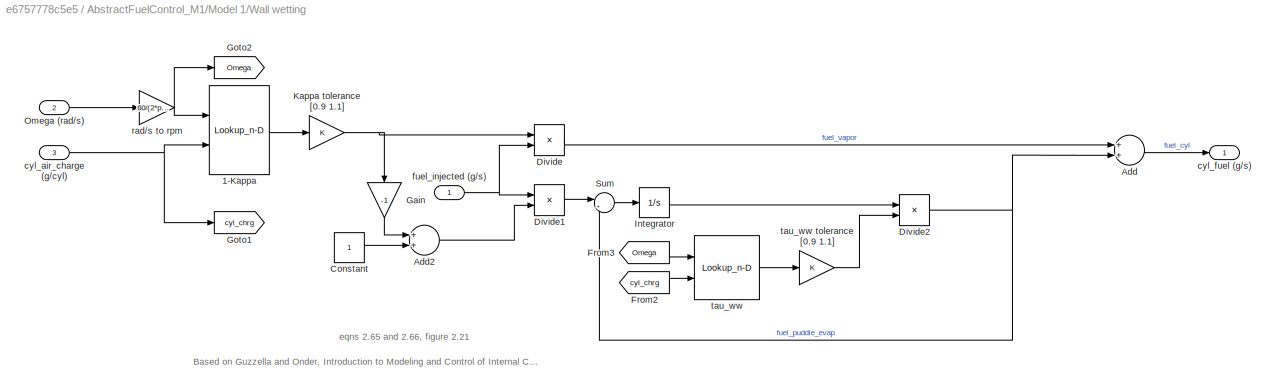
BLOCK [SubSystem] AbstractFuelControl_M1/Model 1/Wall wetting
  Ports = [3, 1]
  RequestExecContextInheritance = off
BLOCK [Lookup_n-D] AbstractFuelControl_M1/Model 1/Wall wetting/1-Kappa
  BreakpointsForDimension1 = [1000,1500,2000,2500,3000]
  BreakpointsForDimension2 = [.1,.2,.3,.4]
  Ports = [2, 1]
  Priority = 142
  RndMeth = Simplest
  Table = reshape([0.8,.7,.7,.8,.9,.7,.66,.65,.73,.85,.66,.66,.63,.66,.8,.6,.6,.6,.6,.7],5,4)
  UseLastTableValue = on
BLOCK [Sum] AbstractFuelControl_M1/Model 1/Wall wetting/Add
  InputSameDT = off
  OutDataTypeStr = Inherit: Inherit via internal rule
  Ports = [2, 1]
  Priority = 151
  SaturateOnIntegerOverflow = off
BLOCK [Sum] AbstractFuelControl_M1/Model 1/Wall wetting/Add2
  InputSameDT = off
  OutDataTypeStr = Inherit: Inherit via internal rule
  Ports = [2, 1]
  Priority = 162
  SaturateOnIntegerOverflow = off
BLOCK [Constant] AbstractFuelControl_M1/Model 1/Wall wetting/Constant
  Priority = 161
BLOCK [Product] AbstractFuelControl_M1/Model 1/Wall wetting/Divide
  InputSameDT = off
  Inputs = **
  OutDataTypeStr = Inherit: Inherit via internal rule
  Ports = [2, 1]
  Priority = 146
  RndMeth = Floor
  SaturateOnIntegerOverflow = off
BLOCK [Product] AbstractFuelControl_M1/Model 1/Wall wetting/Divide1
  InputSameDT = off
  Inputs = **
  OutDataTypeStr = Inherit: Inherit via internal rule
  Ports = [2, 1]
  Priority = 163
  RndMeth = Floor
  SaturateOnIntegerOverflow = off
BLOCK [Product] AbstractFuelControl_M1/Model 1/Wall wetting/Divide2
  InputSameDT = off
  Inputs = */
  OutDataTypeStr = Inherit: Inherit via internal rule
  Ports = [2, 1]
  Priority = 150
  RndMeth = Floor
  SaturateOnIntegerOverflow = off
BLOCK [From] AbstractFuelControl_M1/Model 1/Wall wetting/From2
  GotoTag = cyl_chrg
BLOCK [From] AbstractFuelControl_M1/Model 1/Wall wetting/From3
  GotoTag = Omega
BLOCK [Gain] AbstractFuelControl_M1/Model 1/Wall wetting/Gain
  Gain = -1
  OutDataTypeStr = Inherit: Inherit via internal rule
  ParamDataTypeStr = Inherit: Inherit via internal rule
  Priority = 160
  SaturateOnIntegerOverflow = off
BLOCK [Goto] AbstractFuelControl_M1/Model 1/Wall wetting/Goto1
  GotoTag = cyl_chrg
BLOCK [Goto] AbstractFuelControl_M1/Model 1/Wall wetting/Goto2
  GotoTag = Omega
BLOCK [Integrator] AbstractFuelControl_M1/Model 1/Wall wetting/Integrator
  InitialCondition = .0112
  Ports = [1, 1]
  Priority = 147
BLOCK [Gain] AbstractFuelControl_M1/Model 1/Wall wetting/Kappa tolerance [0.9 1.1]
  OutDataTypeStr = Inherit: Inherit via internal rule
  ParamDataTypeStr = Inherit: Inherit via internal rule
  Priority = 143
  SaturateOnIntegerOverflow = off
BLOCK [Inport] AbstractFuelControl_M1/Model 1/Wall wetting/Omega (rad//s)
  IconDisplay = Port number
  Port = 2
BLOCK [Sum] AbstractFuelControl_M1/Model 1/Wall wetting/Sum
  IconShape = round
  InputSameDT = off
  Inputs = |+-
  OutDataTypeStr = Inherit: Inherit via internal rule
  Ports = [2, 1]
  Priority = 164
  SaturateOnIntegerOverflow = off
BLOCK [Inport] AbstractFuelControl_M1/Model 1/Wall wetting/cyl_air_charge (g//cyl)
  IconDisplay = Port number
  Port = 3
BLOCK [Outport] AbstractFuelControl_M1/Model 1/Wall wetting/cyl_fuel (g//s)
  IconDisplay = Port number
BLOCK [Inport] AbstractFuelControl_M1/Model 1/Wall wetting/fuel_injected (g//s)
  IconDisplay = Port number
BLOCK [Gain] AbstractFuelControl_M1/Model 1/Wall wetting/rad//s to rpm
  Gain = 60/(2*pi)
  OutDataTypeStr = Inherit: Inherit via internal rule
  ParamDataTypeStr = Inherit: Inherit via internal rule
  Priority = 139
  SaturateOnIntegerOverflow = off
BLOCK [Lookup_n-D] AbstractFuelControl_M1/Model 1/Wall wetting/tau_ww
  BreakpointsForDimension1 = [1000,1500,2000,2500,3000]
  BreakpointsForDimension2 = [0.1,0.2,0.3,0.4]
  Ports = [2, 1]
  Priority = 148
  RndMeth = Simplest
  Table = reshape([.4,.3,.35,.3,.2,.22,.22,.4,.35,.5,.20,.22,.5,.4,.35,.35,.3,.45,.5,.4],5,4)
  UseLastTableValue = on
BLOCK [Gain] AbstractFuelControl_M1/Model 1/Wall wetting/tau_ww tolerance [0.9 1.1]
  OutDataTypeStr = Inherit: Inherit via internal rule
  ParamDataTypeStr = Inherit: Inherit via internal rule
  Priority = 149
  SaturateOnIntegerOverflow = off
BLOCK [Outport] AbstractFuelControl_M1/Model 1/airbyfuel_ref
  IconDisplay = Port number
  Port = 2
BLOCK [Outport] AbstractFuelControl_M1/Model 1/controller_mode
  IconDisplay = Port number
  Port = 3
BLOCK [Inport] AbstractFuelControl_M1/Model 1/engine speed (rpm)
  AttributesFormatString = %<Description>
  Description = [900,1100]
  IconDisplay = Port number
  Port = 2
BLOCK [Gain] AbstractFuelControl_M1/Model 1/fuel injector tolerance [0.95 1.05]
  Gain = fuel_inj_tol
  OutDataTypeStr = Inherit: Inherit via internal rule
  ParamDataTypeStr = Inherit: Inherit via internal rule
  Priority = 145
  SaturateOnIntegerOverflow = off
BLOCK [Saturate] AbstractFuelControl_M1/Model 1/theta [0 90]
  InputPortMap = u0
  LowerLimit = 0
  Ports = [1, 1]
  Priority = 8
  UpperLimit = 90
BLOCK [Inport] AbstractFuelControl_M1/Model 1/throttle input (deg)
  AttributesFormatString = %<Description>
  Description = [0, 81.2]
  IconDisplay = Port number
BLOCK [Scope] AbstractFuelControl_M1/Monitor 
  Floating = off
  NumInputPorts = 4
  Ports = [4]
  Priority = 189
  ScopeSpecificationString = Simulink.scopes.TimeScopeBlockCfg('CurrentConfiguration', extmgr.ConfigurationSet(extmgr.Configuration('Core','General UI',true),extmgr.Configuration('Core','Source UI',true),extmgr.Configuration('Sources','WiredSimulink',true,'DataLoggingSaveFormat','StructureWithTime','DataLoggingDecimation','1','DataLoggingDecimateData',true,'DataLoggingVariableName','ScopeData1'),extmgr.Configuration('Visuals'...<+3715ch>
BLOCK [Inport] AbstractFuelControl_M1/Throttle angle
  IconDisplay = Port number
  OutDataTypeStr = double
  Port = 2
  PortDimensions = 1
  SampleTime = [0,0]
  SamplingMode = Sample based
  SignalType = real
BLOCK [SubSystem] AbstractFuelControl_M1/V&V stub system
  Ports = [2, 1]
  Priority = 165
  RequestExecContextInheritance = off
  TreatAsAtomicUnit = on
BLOCK [SubSystem] AbstractFuelControl_M1/V&V stub system/Calcuate Error
  Ports = [3, 1, 1]
  Priority = 172
  RequestExecContextInheritance = off
  TreatAsAtomicUnit = on
BLOCK [EnablePort] AbstractFuelControl_M1/V&V stub system/Calcuate Error/Enable
  Ports = []
BLOCK [From] AbstractFuelControl_M1/V&V stub system/Calcuate Error/From1
  GotoTag = AFREF
BLOCK [From] AbstractFuelControl_M1/V&V stub system/Calcuate Error/From2
  GotoTag = AFREF
BLOCK [From] AbstractFuelControl_M1/V&V stub system/Calcuate Error/From5
  GotoTag = AF
BLOCK [From] AbstractFuelControl_M1/V&V stub system/Calcuate Error/From8
  GotoTag = AF
BLOCK [Goto] AbstractFuelControl_M1/V&V stub system/Calcuate Error/Goto
  GotoTag = AF
BLOCK [Goto] AbstractFuelControl_M1/V&V stub system/Calcuate Error/Goto1
  GotoTag = AFREF
BLOCK [MultiPortSwitch] AbstractFuelControl_M1/V&V stub system/Calcuate Error/Multiport Switch
  InputSameDT = off
  Inputs = 2
  Ports = [3, 1]
  Priority = 187
  SaturateOnIntegerOverflow = off
BLOCK [SubSystem] AbstractFuelControl_M1/V&V stub system/Calcuate Error/RMS error
  Ports = [2, 1, 0, 0, 0, 0, 0, 1]
  Priority = 178
  RequestExecContextInheritance = off
  TreatAsAtomicUnit = on
BLOCK [ActionPort] AbstractFuelControl_M1/V&V stub system/Calcuate Error/RMS error/Action Port
  ActionPortLabel = case [ 2 ]:
BLOCK [Constant] AbstractFuelControl_M1/V&V stub system/Calcuate Error/RMS error/Constant
  Priority = 179
  Value = simTime-10
BLOCK [Product] AbstractFuelControl_M1/V&V stub system/Calcuate Error/RMS error/Divide
  InputSameDT = off
  Inputs = */
  OutDataTypeStr = Inherit: Inherit via internal rule
  Ports = [2, 1]
  Priority = 181
  RndMeth = Floor
  SaturateOnIntegerOverflow = off
BLOCK [Integrator] AbstractFuelControl_M1/V&V stub system/Calcuate Error/RMS error/Integrator
  Ports = [1, 1]
  Priority = 180
BLOCK [Math] AbstractFuelControl_M1/V&V stub system/Calcuate Error/RMS error/Math Function
  Operator = square
  Ports = [1, 1]
  Priority = 183
BLOCK [Step] AbstractFuelControl_M1/V&V stub system/Calcuate Error/RMS error/MeasureOn
  Priority = 184
  SampleTime = 0
  Time = 10
BLOCK [Outport] AbstractFuelControl_M1/V&V stub system/Calcuate Error/RMS error/Out1
  IconDisplay = Port number
BLOCK [Product] AbstractFuelControl_M1/V&V stub system/Calcuate Error/RMS error/Product
  InputSameDT = off
  OutDataTypeStr = Inherit: Inherit via internal rule
  Ports = [2, 1]
  Priority = 185
  RndMeth = Floor
  SaturateOnIntegerOverflow = off
BLOCK [Sqrt] AbstractFuelControl_M1/V&V stub system/Calcuate Error/RMS error/Sqrt
  Priority = 186
BLOCK [Sum] AbstractFuelControl_M1/V&V stub system/Calcuate Error/RMS error/Sum1
  Inputs = +-
  OutDataTypeStr = Inherit: Inherit via back propagation
  Ports = [2, 1]
  Priority = 182
  RndMeth = Simplest
  SaturateOnIntegerOverflow = off
BLOCK [Inport] AbstractFuelControl_M1/V&V stub system/Calcuate Error/RMS error/air_by_fuel 
  IconDisplay = Port number
BLOCK [Inport] AbstractFuelControl_M1/V&V stub system/Calcuate Error/RMS error/air_by_fuel_ref
  IconDisplay = Port number
  Port = 2
BLOCK [SwitchCase] AbstractFuelControl_M1/V&V stub system/Calcuate Error/Switch Case
  CaseConditions = {1,2}
  Ports = [1, 3]
  Priority = 173
BLOCK [Terminator] AbstractFuelControl_M1/V&V stub system/Calcuate Error/Terminator
BLOCK [Inport] AbstractFuelControl_M1/V&V stub system/Calcuate Error/air_by_fuel 
  IconDisplay = Port number
BLOCK [Inport] AbstractFuelControl_M1/V&V stub system/Calcuate Error/air_by_fuel_ref
  IconDisplay = Port number
  Port = 3
BLOCK [SubSystem] AbstractFuelControl_M1/V&V stub system/Calcuate Error/over(under)shoot
  Ports = [2, 1, 0, 0, 0, 0, 0, 1]
  Priority = 174
  RequestExecContextInheritance = off
  TreatAsAtomicUnit = on
BLOCK [ActionPort] AbstractFuelControl_M1/V&V stub system/Calcuate Error/over(under)shoot/Action Port
  ActionPortLabel = case [ 1 ]:
BLOCK [Constant] AbstractFuelControl_M1/V&V stub system/Calcuate Error/over(under)shoot/Constant
  Priority = 175
BLOCK [Product] AbstractFuelControl_M1/V&V stub system/Calcuate Error/over(under)shoot/Divide
  InputSameDT = off
  Inputs = */
  OutDataTypeStr = Inherit: Inherit via internal rule
  Ports = [2, 1]
  Priority = 176
  RndMeth = Floor
  SaturateOnIntegerOverflow = off
BLOCK [Outport] AbstractFuelControl_M1/V&V stub system/Calcuate Error/over(under)shoot/Out1
  IconDisplay = Port number
BLOCK [Sum] AbstractFuelControl_M1/V&V stub system/Calcuate Error/over(under)shoot/Sum1
  Inputs = +-
  OutDataTypeStr = Inherit: Inherit via back propagation
  Ports = [2, 1]
  Priority = 177
  RndMeth = Simplest
  SaturateOnIntegerOverflow = off
BLOCK [Inport] AbstractFuelControl_M1/V&V stub system/Calcuate Error/over(under)shoot/air_by_fuel 
  IconDisplay = Port number
BLOCK [Inport] AbstractFuelControl_M1/V&V stub system/Calcuate Error/over(under)shoot/air_by_fuel_ref
  IconDisplay = Port number
  Port = 2
BLOCK [Outport] AbstractFuelControl_M1/V&V stub system/Calcuate Error/s_out 
  IconDisplay = Port number
BLOCK [Inport] AbstractFuelControl_M1/V&V stub system/Calcuate Error/spec_num
  IconDisplay = Port number
  OutDataTypeStr = uint8
  Port = 2
BLOCK [Constant] AbstractFuelControl_M1/V&V stub system/Constant
  Priority = 169
  Value = 0.5
BLOCK [DataTypeConversion] AbstractFuelControl_M1/V&V stub system/Data Type Conversion
  OutDataTypeStr = double
  Priority = 167
  RndMeth = Floor
  SaturateOnIntegerOverflow = off
BLOCK [Step] AbstractFuelControl_M1/V&V stub system/MeasureOn
  Priority = 168
  SampleTime = 0
  Time = measureTime
BLOCK [RelationalOperator] AbstractFuelControl_M1/V&V stub system/Relational Operator
  InputSameDT = off
  Operator = >
  OutDataTypeStr = boolean
  Ports = [2, 1]
  Priority = 170
BLOCK [Inport] AbstractFuelControl_M1/V&V stub system/air_by_fuel 
  IconDisplay = Port number
  OutDataTypeStr = double
BLOCK [Inport] AbstractFuelControl_M1/V&V stub system/air_by_fuel_ref
  IconDisplay = Port number
  Port = 2
BLOCK [Outport] AbstractFuelControl_M1/V&V stub system/s_out 
  IconDisplay = Port number
BLOCK [Constant] AbstractFuelControl_M1/V&V stub system/spec_num
  OutDataTypeStr = uint8
  Priority = 166
  Value = spec_num
BLOCK [Outport] AbstractFuelControl_M1/mode
  IconDisplay = Port number
  OutDataTypeStr = double
  Port = 2
  PortDimensions = 1
  SampleTime = [0,0]
  SamplingMode = Sample based
  SignalType = real
BLOCK [Outport] AbstractFuelControl_M1/pedal angle
  IconDisplay = Port number
  OutDataTypeStr = double
  Port = 3
  PortDimensions = 1
  SampleTime = [0,0]
  SamplingMode = Sample based
  SignalType = real
BLOCK [Outport] AbstractFuelControl_M1/verificaton measurement
  IconDisplay = Port number
  OutDataTypeStr = double
  PortDimensions = 1
  SampleTime = [0,0]
  SamplingMode = Sample based
  SignalType = real
BLOCK [Inport] Engine Speed (rpm)
  IconDisplay = Port number
  OutDataTypeStr = double
  PortDimensions = [1]
  SampleTime = 0
  SignalType = real
  VarSizeSig = No
BLOCK [SubSystem] Input Conversion Subsystem
  AttributesFormatString = %<Description>
  Description = Signal spec.\nand routing
  Permissions = ReadOnly
  PermitHierarchicalResolution = ExplicitOnly
  Ports = [2, 2]
  RequestExecContextInheritance = off
  Tag = __SLT_ICS__
  UserDataPersistent = on
BLOCK [Inport] Input Conversion Subsystem/Inport_1
  IconDisplay = Port number
BLOCK [Inport] Input Conversion Subsystem/Inport_2
  IconDisplay = Port number
  Port = 2
BLOCK [Outport] Input Conversion Subsystem/Outport_1
  IconDisplay = Port number
BLOCK [Outport] Input Conversion Subsystem/Outport_2
  IconDisplay = Port number
  Port = 2
BLOCK [SignalSpecification] Input Conversion Subsystem/SigSpec_1
  Dimensions = [1]
  OutDataTypeStr = double
  SampleTime = [0, 0]
  SignalType = real
  VarSizeSig = No
BLOCK [SignalSpecification] Input Conversion Subsystem/SigSpec_2
  Dimensions = [1]
  OutDataTypeStr = double
  SampleTime = [0, 0]
  SignalType = real
  VarSizeSig = No
BLOCK [SubSystem] Output Conversion Subsystem
  AttributesFormatString = %<Description>
  Description = Signal spec.\nand routing
  Permissions = ReadOnly
  PermitHierarchicalResolution = ExplicitOnly
  Ports = [3, 3]
  RequestExecContextInheritance = off
  Tag = __SLT_OCS__
  UserDataPersistent = on
BLOCK [Inport] Output Conversion Subsystem/Inport_1
  IconDisplay = Port number
BLOCK [Inport] Output Conversion Subsystem/Inport_2
  IconDisplay = Port number
  Port = 2
BLOCK [Inport] Output Conversion Subsystem/Inport_3
  IconDisplay = Port number
  Port = 3
BLOCK [Outport] Output Conversion Subsystem/Outport_1
  IconDisplay = Port number
BLOCK [Outport] Output Conversion Subsystem/Outport_2
  IconDisplay = Port number
  Port = 2
BLOCK [Outport] Output Conversion Subsystem/Outport_3
  IconDisplay = Port number
  Port = 3
BLOCK [SignalSpecification] Output Conversion Subsystem/SigSpec_1
  Dimensions = [1]
  OutDataTypeStr = double
  SignalType = real
  VarSizeSig = No
BLOCK [SignalSpecification] Output Conversion Subsystem/SigSpec_2
  Dimensions = [1]
  OutDataTypeStr = double
  SignalType = real
  VarSizeSig = No
BLOCK [SignalSpecification] Output Conversion Subsystem/SigSpec_3
  Dimensions = [1]
  OutDataTypeStr = double
  SignalType = real
  VarSizeSig = No
BLOCK [Inport] Throttle angle
  IconDisplay = Port number
  OutDataTypeStr = double
  Port = 2
  PortDimensions = [1]
  SampleTime = 0
  SignalType = real
  VarSizeSig = No
BLOCK [Outport] mode
  IconDisplay = Port number
  OutDataTypeStr = double
  Port = 2
  PortDimensions = [1]
  Priority = 3
  SignalType = real
  VarSizeSig = No
BLOCK [Outport] pedal angle
  IconDisplay = Port number
  OutDataTypeStr = double
  Port = 3
  PortDimensions = [1]
  Priority = 4
  SignalType = real
  VarSizeSig = No
BLOCK [Outport] verificaton measurement
  IconDisplay = Port number
  OutDataTypeStr = double
  PortDimensions = [1]
  Priority = 2
  SignalType = real
  VarSizeSig = No
ANNOTATION AbstractFuelControl_M1: % simulation time (sec) simTime = 50 % engine speed (rpm) en_speed = 1000 % time to start to measurement for verification (sec) measureTime = 1 % time to introduce sensor failure (sec) fault_time = 60 % measurement method for verification spec_num = 1 % fule injection actuator error factor, c25 fuel_inj_tol = 1.0 % MAF sensor error factor, c23 MAF_sensor_tol = 1.0 % A/F sensor error factor, c24 AF...<+17ch>
ANNOTATION AbstractFuelControl_M1: 1: Feedforward 0: Feedforward + Feedback
ANNOTATION AbstractFuelControl_M1: Engine Speed Range: [900 1000]
ANNOTATION AbstractFuelControl_M1: NOTE: Click here to initialize the constants
ANNOTATION AbstractFuelControl_M1: Powertrain Control Benchmark Model Toyota Technial Center 2014
ANNOTATION AbstractFuelControl_M1: This is an air-fuel control model, and an implementation of the 1st model that appears in "Powertrain Control Verification Benchmark", 2014 Hybrid Systems: Computation and Control, X. Jin, J. V. Deshmukh, J.Kapinski, K. Ueda, and K. Butts
ANNOTATION AbstractFuelControl_M1: Verification Harness Layer for Fuel Control System Model
ANNOTATION AbstractFuelControl_M1/Model 1: Based on Guzzella and Onder, Introduction to Modeling and Control of Internal Combustion Engine Systems
ANNOTATION AbstractFuelControl_M1/Model 1: Based on Simulink Demo, <copyright redacted>
ANNOTATION AbstractFuelControl_M1/Model 1: Fuel Control System Model
ANNOTATION AbstractFuelControl_M1/Model 1: Powertrain Control Benchmark Model Toyota Technial Center 2014
ANNOTATION AbstractFuelControl_M1/Model 1: This is an air-fuel control model, and an implementation of the 1st model that appears in "Powertrain Control Verification Benchmark", 2014 Hybrid Systems: Computation and Control, X. Jin, J. V. Deshmukh, J.Kapinski, K. Ueda, and K. Butts
ANNOTATION AbstractFuelControl_M1/Model 1/AF_Controller: Cover Page
ANNOTATION AbstractFuelControl_M1/Model 1/AF_Controller: Global Output
ANNOTATION AbstractFuelControl_M1/Model 1/AF_Controller/fuel_controller: Global Inputs
ANNOTATION AbstractFuelControl_M1/Model 1/AF_Controller/fuel_controller: Trigger Layer
ANNOTATION AbstractFuelControl_M1/Model 1/AF_Controller/fuel_controller/fuel_controller_10ms: Fuel Controller
ANNOTATION AbstractFuelControl_M1/Model 1/AF_Controller/fuel_controller/fuel_controller_10ms/air_estimation: Air Estimation for Fuel Control
ANNOTATION AbstractFuelControl_M1/Model 1/AF_Controller/fuel_controller/fuel_controller_10ms/air_estimation: Pumping: -0.366 + 0.08979*u[1]*u[2] - 0.0337*u[2]*u[1]*u[1] + 0.0001*u[1]*u[2]*u[2]
ANNOTATION AbstractFuelControl_M1/Model 1/AF_Controller/fuel_controller/fuel_controller_10ms/feedback_PI_controller: Feedback PI Controller
ANNOTATION AbstractFuelControl_M1/Model 1/AF_Controller/fuel_controller/fuel_controller_10ms/feedforward_controller: Feedforward Controller
ANNOTATION AbstractFuelControl_M1/Model 1/AF_Controller/fuel_controller/fuel_controller_mode_10ms: Controller Mode/Reference Selection
ANNOTATION AbstractFuelControl_M1/Model 1/AF_Controller/fuel_controller/fuel_controller_mode_10ms/normal_mode_detection: NOTE: For first 10 seconds, controller uses only feedforward control to ignore the initialization issue.
ANNOTATION AbstractFuelControl_M1/Model 1/AF_Controller/fuel_controller/fuel_controller_mode_10ms/normal_mode_detection: Normal Mode Detection (Cold Start to Normal)
ANNOTATION AbstractFuelControl_M1/Model 1/AF_Controller/fuel_controller/fuel_controller_mode_10ms/power_mode_detection: Power Mode Detection
ANNOTATION AbstractFuelControl_M1/Model 1/AF_Controller/fuel_controller/fuel_controller_mode_10ms/sensor_failure_detection: A/F Sensor Failuer Detection
ANNOTATION AbstractFuelControl_M1/Model 1/Cylinder and Exhaust: Based on Guzzella and Onder, Introduction to Modeling and Control of Internal Combustion Engine Systems
ANNOTATION AbstractFuelControl_M1/Model 1/Cylinder and Exhaust: eqn 2.96, figure 4.16
ANNOTATION AbstractFuelControl_M1/Model 1/Cylinder and Exhaust: eqn 2.96, figure 4.16 (simp)
ANNOTATION AbstractFuelControl_M1/Model 1/Intake Manifold: Based on Simulink Demo, <copyright redacted>
ANNOTATION AbstractFuelControl_M1/Model 1/Intake Manifold: Intake Manifold Vacuum
ANNOTATION AbstractFuelControl_M1/Model 1/Throttle: Based on Simulink Demo, <copyright redacted>
ANNOTATION AbstractFuelControl_M1/Model 1/Throttle: Throttle Flow vs. Valve Angle and Pressure
ANNOTATION AbstractFuelControl_M1/Model 1/Wall wetting: Based on Guzzella and Onder, Introduction to Modeling and Control of Internal Combustion Engine Systems
ANNOTATION AbstractFuelControl_M1/Model 1/Wall wetting: eqns 2.65 and 2.66, figure 2.21
ANNOTATION Input Conversion Subsystem: This subsystem has been inserted by Simulink to adapt the output of the source blocks to the interface required by the harnessed component. Modifying the contents of this subsystem may result in compilation and simulation failure.
ANNOTATION Output Conversion Subsystem: This subsystem has been inserted by Simulink to adapt the output of the harnessed component to the interface required by the sink blocks. Modifying the contents of this subsystem may result in compilation and simulation failure.
NET AbstractFuelControl_M1/Data Type Conversion:1 -> AbstractFuelControl_M1/Monitor :3, AbstractFuelControl_M1/mode:1
NET AbstractFuelControl_M1/Engine Speed (rpm):1 -> AbstractFuelControl_M1/Model 1:2, AbstractFuelControl_M1/Monitor :4
NET AbstractFuelControl_M1/Model 1/(rpm) to (rad//s):1 -> AbstractFuelControl_M1/Model 1/Goto:1, AbstractFuelControl_M1/Model 1/Intake Manifold:2
LINE AbstractFuelControl_M1/Model 1/A//F Sensor Fault Injection:1 -> AbstractFuelControl_M1/Model 1/Goto1:1
LINE AbstractFuelControl_M1/Model 1/A//F sensor tolerance [0.99 1.01]:1 -> AbstractFuelControl_M1/Model 1/Data Type Conversion3:1
LINE AbstractFuelControl_M1/Model 1/AF_Controller/DataStoreRead1:1 -> AbstractFuelControl_M1/Model 1/AF_Controller/controller_mode:1
LINE AbstractFuelControl_M1/Model 1/AF_Controller/DataStoreRead2:1 -> AbstractFuelControl_M1/Model 1/AF_Controller/airbyfuel_ref:1
LINE AbstractFuelControl_M1/Model 1/AF_Controller/DataStoreRead:1 -> AbstractFuelControl_M1/Model 1/AF_Controller/commanded_fuel_gps:1
LINE AbstractFuelControl_M1/Model 1/AF_Controller/PulseGenerator_10ms:1 -> AbstractFuelControl_M1/Model 1/AF_Controller/fuel_controller:2
LINE AbstractFuelControl_M1/Model 1/AF_Controller/Pwon:1 -> AbstractFuelControl_M1/Model 1/AF_Controller/fuel_controller:1
LINE AbstractFuelControl_M1/Model 1/AF_Controller/airbyfuel_meas:1 -> AbstractFuelControl_M1/Model 1/AF_Controller/fuel_controller:6
LINE AbstractFuelControl_M1/Model 1/AF_Controller/engine_speed_radps:1 -> AbstractFuelControl_M1/Model 1/AF_Controller/fuel_controller:3
LINE AbstractFuelControl_M1/Model 1/AF_Controller/fuel_controller/airbyfuel_meas:1 -> AbstractFuelControl_M1/Model 1/AF_Controller/fuel_controller/DataStoreWrite2:1
LINE AbstractFuelControl_M1/Model 1/AF_Controller/fuel_controller/engine_speed:1 -> AbstractFuelControl_M1/Model 1/AF_Controller/fuel_controller/DataStoreWrite:1
LINE AbstractFuelControl_M1/Model 1/AF_Controller/fuel_controller/fuel_controller_10ms/Constant2:1 -> AbstractFuelControl_M1/Model 1/AF_Controller/fuel_controller/fuel_controller_10ms/Sum1:1
LINE AbstractFuelControl_M1/Model 1/AF_Controller/fuel_controller/fuel_controller_10ms/Constant3:1 -> AbstractFuelControl_M1/Model 1/AF_Controller/fuel_controller/fuel_controller_10ms/Switch:1
LINE AbstractFuelControl_M1/Model 1/AF_Controller/fuel_controller/fuel_controller_10ms/DataStoreRead1:1 -> AbstractFuelControl_M1/Model 1/AF_Controller/fuel_controller/fuel_controller_10ms/air_estimation:2
LINE AbstractFuelControl_M1/Model 1/AF_Controller/fuel_controller/fuel_controller_10ms/DataStoreRead2:1 -> AbstractFuelControl_M1/Model 1/AF_Controller/fuel_controller/fuel_controller_10ms/feedback_PI_controller:2
NET AbstractFuelControl_M1/Model 1/AF_Controller/fuel_controller/fuel_controller_10ms/DataStoreRead3:1 -> AbstractFuelControl_M1/Model 1/AF_Controller/fuel_controller/fuel_controller_10ms/Logical Operator2:1, AbstractFuelControl_M1/Model 1/AF_Controller/fuel_controller/fuel_controller_10ms/Switch:2
NET AbstractFuelControl_M1/Model 1/AF_Controller/fuel_controller/fuel_controller_10ms/DataStoreRead4:1 -> AbstractFuelControl_M1/Model 1/AF_Controller/fuel_controller/fuel_controller_10ms/feedback_PI_controller:1, AbstractFuelControl_M1/Model 1/AF_Controller/fuel_controller/fuel_controller_10ms/feedforward_controller:2
LINE AbstractFuelControl_M1/Model 1/AF_Controller/fuel_controller/fuel_controller_10ms/DataStoreRead:1 -> AbstractFuelControl_M1/Model 1/AF_Controller/fuel_controller/fuel_controller_10ms/air_estimation:1
LINE AbstractFuelControl_M1/Model 1/AF_Controller/fuel_controller/fuel_controller_10ms/Logical Operator2:1 -> AbstractFuelControl_M1/Model 1/AF_Controller/fuel_controller/fuel_controller_10ms/feedback_PI_controller:enable
LINE AbstractFuelControl_M1/Model 1/AF_Controller/fuel_controller/fuel_controller_10ms/Prod1:1 -> AbstractFuelControl_M1/Model 1/AF_Controller/fuel_controller/fuel_controller_10ms/fuel_saturation:1
LINE AbstractFuelControl_M1/Model 1/AF_Controller/fuel_controller/fuel_controller_10ms/Sum1:1 -> AbstractFuelControl_M1/Model 1/AF_Controller/fuel_controller/fuel_controller_10ms/fb_fuel_saturation:1
LINE AbstractFuelControl_M1/Model 1/AF_Controller/fuel_controller/fuel_controller_10ms/Switch:1 -> AbstractFuelControl_M1/Model 1/AF_Controller/fuel_controller/fuel_controller_10ms/Prod1:2
LINE AbstractFuelControl_M1/Model 1/AF_Controller/fuel_controller/fuel_controller_10ms/air_estimation/Constant1:1 -> AbstractFuelControl_M1/Model 1/AF_Controller/fuel_controller/fuel_controller_10ms/air_estimation/Prod1:2
LINE AbstractFuelControl_M1/Model 1/AF_Controller/fuel_controller/fuel_controller_10ms/air_estimation/Constant2:1 -> AbstractFuelControl_M1/Model 1/AF_Controller/fuel_controller/fuel_controller_10ms/air_estimation/Sum3:1
LINE AbstractFuelControl_M1/Model 1/AF_Controller/fuel_controller/fuel_controller_10ms/air_estimation/Constant3:1 -> AbstractFuelControl_M1/Model 1/AF_Controller/fuel_controller/fuel_controller_10ms/air_estimation/Prod2:3
LINE AbstractFuelControl_M1/Model 1/AF_Controller/fuel_controller/fuel_controller_10ms/air_estimation/Constant4:1 -> AbstractFuelControl_M1/Model 1/AF_Controller/fuel_controller/fuel_controller_10ms/air_estimation/Prod3:4
LINE AbstractFuelControl_M1/Model 1/AF_Controller/fuel_controller/fuel_controller_10ms/air_estimation/Constant5:1 -> AbstractFuelControl_M1/Model 1/AF_Controller/fuel_controller/fuel_controller_10ms/air_estimation/Prod4:4
LINE AbstractFuelControl_M1/Model 1/AF_Controller/fuel_controller/fuel_controller_10ms/air_estimation/Gain:1 -> AbstractFuelControl_M1/Model 1/AF_Controller/fuel_controller/fuel_controller_10ms/air_estimation/Prod1:1
LINE AbstractFuelControl_M1/Model 1/AF_Controller/fuel_controller/fuel_controller_10ms/air_estimation/Prod1:1 -> AbstractFuelControl_M1/Model 1/AF_Controller/fuel_controller/fuel_controller_10ms/air_estimation/Sum2:1
LINE AbstractFuelControl_M1/Model 1/AF_Controller/fuel_controller/fuel_controller_10ms/air_estimation/Prod2:1 -> AbstractFuelControl_M1/Model 1/AF_Controller/fuel_controller/fuel_controller_10ms/air_estimation/Sum3:2
LINE AbstractFuelControl_M1/Model 1/AF_Controller/fuel_controller/fuel_controller_10ms/air_estimation/Prod3:1 -> AbstractFuelControl_M1/Model 1/AF_Controller/fuel_controller/fuel_controller_10ms/air_estimation/Sum3:3
LINE AbstractFuelControl_M1/Model 1/AF_Controller/fuel_controller/fuel_controller_10ms/air_estimation/Prod4:1 -> AbstractFuelControl_M1/Model 1/AF_Controller/fuel_controller/fuel_controller_10ms/air_estimation/Sum3:4
LINE AbstractFuelControl_M1/Model 1/AF_Controller/fuel_controller/fuel_controller_10ms/air_estimation/Sum1:1 -> AbstractFuelControl_M1/Model 1/AF_Controller/fuel_controller/fuel_controller_10ms/air_estimation/Gain:1
LINE AbstractFuelControl_M1/Model 1/AF_Controller/fuel_controller/fuel_controller_10ms/air_estimation/Sum2:1 -> AbstractFuelControl_M1/Model 1/AF_Controller/fuel_controller/fuel_controller_10ms/air_estimation/UnitDelay1:1
NET AbstractFuelControl_M1/Model 1/AF_Controller/fuel_controller/fuel_controller_10ms/air_estimation/Sum3:1 -> AbstractFuelControl_M1/Model 1/AF_Controller/fuel_controller/fuel_controller_10ms/air_estimation/Sum1:2, AbstractFuelControl_M1/Model 1/AF_Controller/fuel_controller/fuel_controller_10ms/air_estimation/estimated_cyl_air_flow_gps:1
NET AbstractFuelControl_M1/Model 1/AF_Controller/fuel_controller/fuel_controller_10ms/air_estimation/UnitDelay1:1 -> AbstractFuelControl_M1/Model 1/AF_Controller/fuel_controller/fuel_controller_10ms/air_estimation/Prod2:1, AbstractFuelControl_M1/Model 1/AF_Controller/fuel_controller/fuel_controller_10ms/air_estimation/Prod3:1, AbstractFuelControl_M1/Model 1/AF_Controller/fuel_controller/fuel_controller_10ms/air_estimation/Prod3:2, AbstractFuelControl_M1/Model 1/AF_Controller/fuel_controller/fuel_controller_10ms/air_estimation/Prod4:3, AbstractFuelControl_M1/Model 1/AF_Controller/fuel_controller/fuel_controller_10ms/air_estimation/Sum2:2
NET AbstractFuelControl_M1/Model 1/AF_Controller/fuel_controller/fuel_controller_10ms/air_estimation/engine_speed_radps:1 -> AbstractFuelControl_M1/Model 1/AF_Controller/fuel_controller/fuel_controller_10ms/air_estimation/Prod2:2, AbstractFuelControl_M1/Model 1/AF_Controller/fuel_controller/fuel_controller_10ms/air_estimation/Prod3:3, AbstractFuelControl_M1/Model 1/AF_Controller/fuel_controller/fuel_controller_10ms/air_estimation/Prod4:1, AbstractFuelControl_M1/Model 1/AF_Controller/fuel_controller/fuel_controller_10ms/air_estimation/Prod4:2
LINE AbstractFuelControl_M1/Model 1/AF_Controller/fuel_controller/fuel_controller_10ms/air_estimation/throttle_flow_gps:1 -> AbstractFuelControl_M1/Model 1/AF_Controller/fuel_controller/fuel_controller_10ms/air_estimation/Sum1:1
LINE AbstractFuelControl_M1/Model 1/AF_Controller/fuel_controller/fuel_controller_10ms/air_estimation:1 -> AbstractFuelControl_M1/Model 1/AF_Controller/fuel_controller/fuel_controller_10ms/feedforward_controller:1
LINE AbstractFuelControl_M1/Model 1/AF_Controller/fuel_controller/fuel_controller_10ms/fb_fuel_saturation:1 -> AbstractFuelControl_M1/Model 1/AF_Controller/fuel_controller/fuel_controller_10ms/Switch:3
LINE AbstractFuelControl_M1/Model 1/AF_Controller/fuel_controller/fuel_controller_10ms/feedback_PI_controller/Constant1:1 -> AbstractFuelControl_M1/Model 1/AF_Controller/fuel_controller/fuel_controller_10ms/feedback_PI_controller/Prod1:2
LINE AbstractFuelControl_M1/Model 1/AF_Controller/fuel_controller/fuel_controller_10ms/feedback_PI_controller/Gain1:1 -> AbstractFuelControl_M1/Model 1/AF_Controller/fuel_controller/fuel_controller_10ms/feedback_PI_controller/Prod1:1
LINE AbstractFuelControl_M1/Model 1/AF_Controller/fuel_controller/fuel_controller_10ms/feedback_PI_controller/Gain:1 -> AbstractFuelControl_M1/Model 1/AF_Controller/fuel_controller/fuel_controller_10ms/feedback_PI_controller/Sum3:1
LINE AbstractFuelControl_M1/Model 1/AF_Controller/fuel_controller/fuel_controller_10ms/feedback_PI_controller/Prod1:1 -> AbstractFuelControl_M1/Model 1/AF_Controller/fuel_controller/fuel_controller_10ms/feedback_PI_controller/Sum2:1
NET AbstractFuelControl_M1/Model 1/AF_Controller/fuel_controller/fuel_controller_10ms/feedback_PI_controller/Sum1:1 -> AbstractFuelControl_M1/Model 1/AF_Controller/fuel_controller/fuel_controller_10ms/feedback_PI_controller/Gain1:1, AbstractFuelControl_M1/Model 1/AF_Controller/fuel_controller/fuel_controller_10ms/feedback_PI_controller/Gain:1
NET AbstractFuelControl_M1/Model 1/AF_Controller/fuel_controller/fuel_controller_10ms/feedback_PI_controller/Sum2:1 -> AbstractFuelControl_M1/Model 1/AF_Controller/fuel_controller/fuel_controller_10ms/feedback_PI_controller/Sum3:2, AbstractFuelControl_M1/Model 1/AF_Controller/fuel_controller/fuel_controller_10ms/feedback_PI_controller/UnitDelay1:1
LINE AbstractFuelControl_M1/Model 1/AF_Controller/fuel_controller/fuel_controller_10ms/feedback_PI_controller/Sum3:1 -> AbstractFuelControl_M1/Model 1/AF_Controller/fuel_controller/fuel_controller_10ms/feedback_PI_controller/closed_loop_fuel_trim:1
LINE AbstractFuelControl_M1/Model 1/AF_Controller/fuel_controller/fuel_controller_10ms/feedback_PI_controller/UnitDelay1:1 -> AbstractFuelControl_M1/Model 1/AF_Controller/fuel_controller/fuel_controller_10ms/feedback_PI_controller/Sum2:2
LINE AbstractFuelControl_M1/Model 1/AF_Controller/fuel_controller/fuel_controller_10ms/feedback_PI_controller/airbyfuel_meas:1 -> AbstractFuelControl_M1/Model 1/AF_Controller/fuel_controller/fuel_controller_10ms/feedback_PI_controller/Sum1:2
LINE AbstractFuelControl_M1/Model 1/AF_Controller/fuel_controller/fuel_controller_10ms/feedback_PI_controller/airbyfuel_reference:1 -> AbstractFuelControl_M1/Model 1/AF_Controller/fuel_controller/fuel_controller_10ms/feedback_PI_controller/Sum1:1
LINE AbstractFuelControl_M1/Model 1/AF_Controller/fuel_controller/fuel_controller_10ms/feedback_PI_controller:1 -> AbstractFuelControl_M1/Model 1/AF_Controller/fuel_controller/fuel_controller_10ms/Sum1:2
LINE AbstractFuelControl_M1/Model 1/AF_Controller/fuel_controller/fuel_controller_10ms/feedforward_controller/Product:1 -> AbstractFuelControl_M1/Model 1/AF_Controller/fuel_controller/fuel_controller_10ms/feedforward_controller/desired_fuel_mass_gps:1
LINE AbstractFuelControl_M1/Model 1/AF_Controller/fuel_controller/fuel_controller_10ms/feedforward_controller/airbyfuel_reference:1 -> AbstractFuelControl_M1/Model 1/AF_Controller/fuel_controller/fuel_controller_10ms/feedforward_controller/Product:2
LINE AbstractFuelControl_M1/Model 1/AF_Controller/fuel_controller/fuel_controller_10ms/feedforward_controller/estimated_cyl_air_flow_gps:1 -> AbstractFuelControl_M1/Model 1/AF_Controller/fuel_controller/fuel_controller_10ms/feedforward_controller/Product:1
LINE AbstractFuelControl_M1/Model 1/AF_Controller/fuel_controller/fuel_controller_10ms/feedforward_controller:1 -> AbstractFuelControl_M1/Model 1/AF_Controller/fuel_controller/fuel_controller_10ms/Prod1:1
LINE AbstractFuelControl_M1/Model 1/AF_Controller/fuel_controller/fuel_controller_10ms/fuel_saturation:1 -> AbstractFuelControl_M1/Model 1/AF_Controller/fuel_controller/fuel_controller_10ms/DataStoreWrite:1
LINE AbstractFuelControl_M1/Model 1/AF_Controller/fuel_controller/fuel_controller_mode_10ms/DataStoreRead2:1 -> AbstractFuelControl_M1/Model 1/AF_Controller/fuel_controller/fuel_controller_mode_10ms/sensor_failure_detection:1
LINE AbstractFuelControl_M1/Model 1/AF_Controller/fuel_controller/fuel_controller_mode_10ms/DataStoreRead4:1 -> AbstractFuelControl_M1/Model 1/AF_Controller/fuel_controller/fuel_controller_mode_10ms/power_mode_detection:1
LINE AbstractFuelControl_M1/Model 1/AF_Controller/fuel_controller/fuel_controller_mode_10ms/Logical Operator1:1 -> AbstractFuelControl_M1/Model 1/AF_Controller/fuel_controller/fuel_controller_mode_10ms/DataStoreWrite:1
LINE AbstractFuelControl_M1/Model 1/AF_Controller/fuel_controller/fuel_controller_mode_10ms/Logical Operator2:1 -> AbstractFuelControl_M1/Model 1/AF_Controller/fuel_controller/fuel_controller_mode_10ms/Logical Operator1:2
LINE AbstractFuelControl_M1/Model 1/AF_Controller/fuel_controller/fuel_controller_mode_10ms/Logical Operator3:1 -> AbstractFuelControl_M1/Model 1/AF_Controller/fuel_controller/fuel_controller_mode_10ms/Switch:2
LINE AbstractFuelControl_M1/Model 1/AF_Controller/fuel_controller/fuel_controller_mode_10ms/Switch:1 -> AbstractFuelControl_M1/Model 1/AF_Controller/fuel_controller/fuel_controller_mode_10ms/DataStoreWrite1:1
LINE AbstractFuelControl_M1/Model 1/AF_Controller/fuel_controller/fuel_controller_mode_10ms/airbyfuel_reference:1 -> AbstractFuelControl_M1/Model 1/AF_Controller/fuel_controller/fuel_controller_mode_10ms/Switch:3
LINE AbstractFuelControl_M1/Model 1/AF_Controller/fuel_controller/fuel_controller_mode_10ms/airbyfuel_reference_power:1 -> AbstractFuelControl_M1/Model 1/AF_Controller/fuel_controller/fuel_controller_mode_10ms/Switch:1
NET AbstractFuelControl_M1/Model 1/AF_Controller/fuel_controller/fuel_controller_mode_10ms/normal_mode_detection/Logical Operator:1 -> AbstractFuelControl_M1/Model 1/AF_Controller/fuel_controller/fuel_controller_mode_10ms/normal_mode_detection/Unit Delay1:1, AbstractFuelControl_M1/Model 1/AF_Controller/fuel_controller/fuel_controller_mode_10ms/normal_mode_detection/normal_on:1
LINE AbstractFuelControl_M1/Model 1/AF_Controller/fuel_controller/fuel_controller_mode_10ms/normal_mode_detection/Relational Operator:1 -> AbstractFuelControl_M1/Model 1/AF_Controller/fuel_controller/fuel_controller_mode_10ms/normal_mode_detection/Logical Operator:1
NET AbstractFuelControl_M1/Model 1/AF_Controller/fuel_controller/fuel_controller_mode_10ms/normal_mode_detection/Sum:1 -> AbstractFuelControl_M1/Model 1/AF_Controller/fuel_controller/fuel_controller_mode_10ms/normal_mode_detection/Relational Operator:1, AbstractFuelControl_M1/Model 1/AF_Controller/fuel_controller/fuel_controller_mode_10ms/normal_mode_detection/Unit Delay2:1
LINE AbstractFuelControl_M1/Model 1/AF_Controller/fuel_controller/fuel_controller_mode_10ms/normal_mode_detection/Unit Delay1:1 -> AbstractFuelControl_M1/Model 1/AF_Controller/fuel_controller/fuel_controller_mode_10ms/normal_mode_detection/Logical Operator:2
LINE AbstractFuelControl_M1/Model 1/AF_Controller/fuel_controller/fuel_controller_mode_10ms/normal_mode_detection/Unit Delay2:1 -> AbstractFuelControl_M1/Model 1/AF_Controller/fuel_controller/fuel_controller_mode_10ms/normal_mode_detection/Sum:1
LINE AbstractFuelControl_M1/Model 1/AF_Controller/fuel_controller/fuel_controller_mode_10ms/normal_mode_detection/normal_mode_start_sec:1 -> AbstractFuelControl_M1/Model 1/AF_Controller/fuel_controller/fuel_controller_mode_10ms/normal_mode_detection/Relational Operator:2
LINE AbstractFuelControl_M1/Model 1/AF_Controller/fuel_controller/fuel_controller_mode_10ms/normal_mode_detection/sampling_sec:1 -> AbstractFuelControl_M1/Model 1/AF_Controller/fuel_controller/fuel_controller_mode_10ms/normal_mode_detection/Sum:2
NET AbstractFuelControl_M1/Model 1/AF_Controller/fuel_controller/fuel_controller_mode_10ms/normal_mode_detection:1 -> AbstractFuelControl_M1/Model 1/AF_Controller/fuel_controller/fuel_controller_mode_10ms/Logical Operator2:1, AbstractFuelControl_M1/Model 1/AF_Controller/fuel_controller/fuel_controller_mode_10ms/Logical Operator3:1
LINE AbstractFuelControl_M1/Model 1/AF_Controller/fuel_controller/fuel_controller_mode_10ms/power_mode_detection/Constant1:1 -> AbstractFuelControl_M1/Model 1/AF_Controller/fuel_controller/fuel_controller_mode_10ms/power_mode_detection/Sum:2
NET AbstractFuelControl_M1/Model 1/AF_Controller/fuel_controller/fuel_controller_mode_10ms/power_mode_detection/Constant:1 -> AbstractFuelControl_M1/Model 1/AF_Controller/fuel_controller/fuel_controller_mode_10ms/power_mode_detection/Sum:1, AbstractFuelControl_M1/Model 1/AF_Controller/fuel_controller/fuel_controller_mode_10ms/power_mode_detection/Switch:1
NET AbstractFuelControl_M1/Model 1/AF_Controller/fuel_controller/fuel_controller_mode_10ms/power_mode_detection/Relational Operator1:1 -> AbstractFuelControl_M1/Model 1/AF_Controller/fuel_controller/fuel_controller_mode_10ms/power_mode_detection/Unit Delay1:1, AbstractFuelControl_M1/Model 1/AF_Controller/fuel_controller/fuel_controller_mode_10ms/power_mode_detection/power_on:1
LINE AbstractFuelControl_M1/Model 1/AF_Controller/fuel_controller/fuel_controller_mode_10ms/power_mode_detection/Sum:1 -> AbstractFuelControl_M1/Model 1/AF_Controller/fuel_controller/fuel_controller_mode_10ms/power_mode_detection/Switch:3
LINE AbstractFuelControl_M1/Model 1/AF_Controller/fuel_controller/fuel_controller_mode_10ms/power_mode_detection/Switch:1 -> AbstractFuelControl_M1/Model 1/AF_Controller/fuel_controller/fuel_controller_mode_10ms/power_mode_detection/Relational Operator1:2
LINE AbstractFuelControl_M1/Model 1/AF_Controller/fuel_controller/fuel_controller_mode_10ms/power_mode_detection/Unit Delay1:1 -> AbstractFuelControl_M1/Model 1/AF_Controller/fuel_controller/fuel_controller_mode_10ms/power_mode_detection/Switch:2
LINE AbstractFuelControl_M1/Model 1/AF_Controller/fuel_controller/fuel_controller_mode_10ms/power_mode_detection/throttle_angle:1 -> AbstractFuelControl_M1/Model 1/AF_Controller/fuel_controller/fuel_controller_mode_10ms/power_mode_detection/Relational Operator1:1
NET AbstractFuelControl_M1/Model 1/AF_Controller/fuel_controller/fuel_controller_mode_10ms/power_mode_detection:1 -> AbstractFuelControl_M1/Model 1/AF_Controller/fuel_controller/fuel_controller_mode_10ms/Logical Operator1:3, AbstractFuelControl_M1/Model 1/AF_Controller/fuel_controller/fuel_controller_mode_10ms/Logical Operator3:2
NET AbstractFuelControl_M1/Model 1/AF_Controller/fuel_controller/fuel_controller_mode_10ms/sensor_failure_detection/Logical Operator:1 -> AbstractFuelControl_M1/Model 1/AF_Controller/fuel_controller/fuel_controller_mode_10ms/sensor_failure_detection/Unit Delay:1, AbstractFuelControl_M1/Model 1/AF_Controller/fuel_controller/fuel_controller_mode_10ms/sensor_failure_detection/fail_on:1
LINE AbstractFuelControl_M1/Model 1/AF_Controller/fuel_controller/fuel_controller_mode_10ms/sensor_failure_detection/Relational Operator:1 -> AbstractFuelControl_M1/Model 1/AF_Controller/fuel_controller/fuel_controller_mode_10ms/sensor_failure_detection/Logical Operator:1
LINE AbstractFuelControl_M1/Model 1/AF_Controller/fuel_controller/fuel_controller_mode_10ms/sensor_failure_detection/Unit Delay:1 -> AbstractFuelControl_M1/Model 1/AF_Controller/fuel_controller/fuel_controller_mode_10ms/sensor_failure_detection/Logical Operator:2
LINE AbstractFuelControl_M1/Model 1/AF_Controller/fuel_controller/fuel_controller_mode_10ms/sensor_failure_detection/airbyfuel_meas:1 -> AbstractFuelControl_M1/Model 1/AF_Controller/fuel_controller/fuel_controller_mode_10ms/sensor_failure_detection/Relational Operator:1
LINE AbstractFuelControl_M1/Model 1/AF_Controller/fuel_controller/fuel_controller_mode_10ms/sensor_failure_detection/threshold:1 -> AbstractFuelControl_M1/Model 1/AF_Controller/fuel_controller/fuel_controller_mode_10ms/sensor_failure_detection/Relational Operator:2
LINE AbstractFuelControl_M1/Model 1/AF_Controller/fuel_controller/fuel_controller_mode_10ms/sensor_failure_detection:1 -> AbstractFuelControl_M1/Model 1/AF_Controller/fuel_controller/fuel_controller_mode_10ms/Logical Operator1:1
LINE AbstractFuelControl_M1/Model 1/AF_Controller/fuel_controller/fuel_controller_pwon/Constant1:1 -> AbstractFuelControl_M1/Model 1/AF_Controller/fuel_controller/fuel_controller_pwon/Data Type Conversion:1
LINE AbstractFuelControl_M1/Model 1/AF_Controller/fuel_controller/fuel_controller_pwon/Constant2:1 -> AbstractFuelControl_M1/Model 1/AF_Controller/fuel_controller/fuel_controller_pwon/DataStoreWrite:1
LINE AbstractFuelControl_M1/Model 1/AF_Controller/fuel_controller/fuel_controller_pwon/Constant3:1 -> AbstractFuelControl_M1/Model 1/AF_Controller/fuel_controller/fuel_controller_pwon/DataStoreWrite2:1
LINE AbstractFuelControl_M1/Model 1/AF_Controller/fuel_controller/fuel_controller_pwon/Data Type Conversion:1 -> AbstractFuelControl_M1/Model 1/AF_Controller/fuel_controller/fuel_controller_pwon/DataStoreWrite1:1
LINE AbstractFuelControl_M1/Model 1/AF_Controller/fuel_controller/throttle_angle_deg:1 -> AbstractFuelControl_M1/Model 1/AF_Controller/fuel_controller/DataStoreWrite3:1
LINE AbstractFuelControl_M1/Model 1/AF_Controller/fuel_controller/throttle_flow:1 -> AbstractFuelControl_M1/Model 1/AF_Controller/fuel_controller/DataStoreWrite1:1
NET AbstractFuelControl_M1/Model 1/AF_Controller/fuel_controller/trigger_10ms:1 -> AbstractFuelControl_M1/Model 1/AF_Controller/fuel_controller/fuel_controller_10ms:trigger, AbstractFuelControl_M1/Model 1/AF_Controller/fuel_controller/fuel_controller_mode_10ms:trigger
LINE AbstractFuelControl_M1/Model 1/AF_Controller/fuel_controller/trigger_pwon:1 -> AbstractFuelControl_M1/Model 1/AF_Controller/fuel_controller/fuel_controller_pwon:trigger
LINE AbstractFuelControl_M1/Model 1/AF_Controller/throttle_angle_deg:1 -> AbstractFuelControl_M1/Model 1/AF_Controller/fuel_controller:4
LINE AbstractFuelControl_M1/Model 1/AF_Controller/throttle_flow_gps:1 -> AbstractFuelControl_M1/Model 1/AF_Controller/fuel_controller:5
LINE AbstractFuelControl_M1/Model 1/AF_Controller:1 -> AbstractFuelControl_M1/Model 1/Data Type Conversion:1
LINE AbstractFuelControl_M1/Model 1/AF_Controller:2 -> AbstractFuelControl_M1/Model 1/controller_mode:1
LINE AbstractFuelControl_M1/Model 1/AF_Controller:3 -> AbstractFuelControl_M1/Model 1/airbyfuel_ref:1
LINE AbstractFuelControl_M1/Model 1/Atmospheric Pressure (bar):1 -> AbstractFuelControl_M1/Model 1/Throttle:3
LINE AbstractFuelControl_M1/Model 1/Base opening angle:1 -> AbstractFuelControl_M1/Model 1/Sum:2
LINE AbstractFuelControl_M1/Model 1/Cylinder and Exhaust/A//F_sensor/A//F_sensor:1 -> AbstractFuelControl_M1/Model 1/Cylinder and Exhaust/A//F_sensor/Out:1
LINE AbstractFuelControl_M1/Model 1/Cylinder and Exhaust/A//F_sensor/Filter/Gain:1 -> AbstractFuelControl_M1/Model 1/Cylinder and Exhaust/A//F_sensor/Filter/Integrator:1
LINE AbstractFuelControl_M1/Model 1/Cylinder and Exhaust/A//F_sensor/Filter/In:1 -> AbstractFuelControl_M1/Model 1/Cylinder and Exhaust/A//F_sensor/Filter/Sum:1
NET AbstractFuelControl_M1/Model 1/Cylinder and Exhaust/A//F_sensor/Filter/Integrator:1 -> AbstractFuelControl_M1/Model 1/Cylinder and Exhaust/A//F_sensor/Filter/Out:1, AbstractFuelControl_M1/Model 1/Cylinder and Exhaust/A//F_sensor/Filter/Sum:2
LINE AbstractFuelControl_M1/Model 1/Cylinder and Exhaust/A//F_sensor/Filter/Sum:1 -> AbstractFuelControl_M1/Model 1/Cylinder and Exhaust/A//F_sensor/Filter/Gain:1
LINE AbstractFuelControl_M1/Model 1/Cylinder and Exhaust/A//F_sensor/Filter:1 -> AbstractFuelControl_M1/Model 1/Cylinder and Exhaust/A//F_sensor/A//F_sensor:1
LINE AbstractFuelControl_M1/Model 1/Cylinder and Exhaust/A//F_sensor/In:1 -> AbstractFuelControl_M1/Model 1/Cylinder and Exhaust/A//F_sensor/Filter:1
NET AbstractFuelControl_M1/Model 1/Cylinder and Exhaust/A//F_sensor:1 -> AbstractFuelControl_M1/Model 1/Cylinder and Exhaust/Switch:3, AbstractFuelControl_M1/Model 1/Cylinder and Exhaust/airbyfuel_mon :1
LINE AbstractFuelControl_M1/Model 1/Cylinder and Exhaust/Divide:1 -> AbstractFuelControl_M1/Model 1/Cylinder and Exhaust/fuel system transport delay:1
LINE AbstractFuelControl_M1/Model 1/Cylinder and Exhaust/FaultySensorOutput:1 -> AbstractFuelControl_M1/Model 1/Cylinder and Exhaust/Switch:1
LINE AbstractFuelControl_M1/Model 1/Cylinder and Exhaust/Filter/Gain1:1 -> AbstractFuelControl_M1/Model 1/Cylinder and Exhaust/Filter/Integrator:1
NET AbstractFuelControl_M1/Model 1/Cylinder and Exhaust/Filter/Integrator:1 -> AbstractFuelControl_M1/Model 1/Cylinder and Exhaust/Filter/Sum:2, AbstractFuelControl_M1/Model 1/Cylinder and Exhaust/Filter/out:1
LINE AbstractFuelControl_M1/Model 1/Cylinder and Exhaust/Filter/Sum:1 -> AbstractFuelControl_M1/Model 1/Cylinder and Exhaust/Filter/Gain1:1
LINE AbstractFuelControl_M1/Model 1/Cylinder and Exhaust/Filter/in:1 -> AbstractFuelControl_M1/Model 1/Cylinder and Exhaust/Filter/Sum:1
LINE AbstractFuelControl_M1/Model 1/Cylinder and Exhaust/Filter:1 -> AbstractFuelControl_M1/Model 1/Cylinder and Exhaust/A//F_sensor:1
LINE AbstractFuelControl_M1/Model 1/Cylinder and Exhaust/From1:1 -> AbstractFuelControl_M1/Model 1/Cylinder and Exhaust/Product1:2
LINE AbstractFuelControl_M1/Model 1/Cylinder and Exhaust/From3:1 -> AbstractFuelControl_M1/Model 1/Cylinder and Exhaust/delay (s):2
NET AbstractFuelControl_M1/Model 1/Cylinder and Exhaust/Gain:1 -> AbstractFuelControl_M1/Model 1/Cylinder and Exhaust/Goto:1, AbstractFuelControl_M1/Model 1/Cylinder and Exhaust/cyl_air_charge (g//cyl):1
NET AbstractFuelControl_M1/Model 1/Cylinder and Exhaust/Omega (rad//s):1 -> AbstractFuelControl_M1/Model 1/Cylinder and Exhaust/Goto1:1, AbstractFuelControl_M1/Model 1/Cylinder and Exhaust/rad//s to rpm:1
LINE AbstractFuelControl_M1/Model 1/Cylinder and Exhaust/Product1:1 -> AbstractFuelControl_M1/Model 1/Cylinder and Exhaust/Gain:1
LINE AbstractFuelControl_M1/Model 1/Cylinder and Exhaust/SensorFault:1 -> AbstractFuelControl_M1/Model 1/Cylinder and Exhaust/Switch:2
LINE AbstractFuelControl_M1/Model 1/Cylinder and Exhaust/Switch:1 -> AbstractFuelControl_M1/Model 1/Cylinder and Exhaust/airbyfue_meas:1
NET AbstractFuelControl_M1/Model 1/Cylinder and Exhaust/cyl_air (g//s):1 -> AbstractFuelControl_M1/Model 1/Cylinder and Exhaust/Divide:1, AbstractFuelControl_M1/Model 1/Cylinder and Exhaust/Product1:1
LINE AbstractFuelControl_M1/Model 1/Cylinder and Exhaust/cyl_fuel (g//s):1 -> AbstractFuelControl_M1/Model 1/Cylinder and Exhaust/Divide:2
LINE AbstractFuelControl_M1/Model 1/Cylinder and Exhaust/delay (s):1 -> AbstractFuelControl_M1/Model 1/Cylinder and Exhaust/fuel system transport delay:2
LINE AbstractFuelControl_M1/Model 1/Cylinder and Exhaust/fuel system transport delay:1 -> AbstractFuelControl_M1/Model 1/Cylinder and Exhaust/Filter:1
LINE AbstractFuelControl_M1/Model 1/Cylinder and Exhaust/rad//s to rpm:1 -> AbstractFuelControl_M1/Model 1/Cylinder and Exhaust/delay (s):1
LINE AbstractFuelControl_M1/Model 1/Cylinder and Exhaust:1 -> AbstractFuelControl_M1/Model 1/A//F sensor tolerance [0.99 1.01]:1
LINE AbstractFuelControl_M1/Model 1/Cylinder and Exhaust:2 -> AbstractFuelControl_M1/Model 1/Wall wetting:3
NET AbstractFuelControl_M1/Model 1/Cylinder and Exhaust:3 -> AbstractFuelControl_M1/Model 1/A//F:1, AbstractFuelControl_M1/Model 1/Monitor:1
LINE AbstractFuelControl_M1/Model 1/Data Type Conversion1:1 -> AbstractFuelControl_M1/Model 1/AF_Controller:1
LINE AbstractFuelControl_M1/Model 1/Data Type Conversion2:1 -> AbstractFuelControl_M1/Model 1/AF_Controller:3
LINE AbstractFuelControl_M1/Model 1/Data Type Conversion3:1 -> AbstractFuelControl_M1/Model 1/AF_Controller:4
LINE AbstractFuelControl_M1/Model 1/Data Type Conversion4:1 -> AbstractFuelControl_M1/Model 1/AF_Controller:2
LINE AbstractFuelControl_M1/Model 1/Data Type Conversion:1 -> AbstractFuelControl_M1/Model 1/fuel injector tolerance [0.95 1.05]:1
LINE AbstractFuelControl_M1/Model 1/Engine Speed [900 1100]:1 -> AbstractFuelControl_M1/Model 1/(rpm) to (rad//s):1
LINE AbstractFuelControl_M1/Model 1/From1:1 -> AbstractFuelControl_M1/Model 1/Wall wetting:2
LINE AbstractFuelControl_M1/Model 1/From2:1 -> AbstractFuelControl_M1/Model 1/Data Type Conversion1:1
LINE AbstractFuelControl_M1/Model 1/From3:1 -> AbstractFuelControl_M1/Model 1/Cylinder and Exhaust:4
LINE AbstractFuelControl_M1/Model 1/From4:1 -> AbstractFuelControl_M1/Model 1/Cylinder and Exhaust:3
LINE AbstractFuelControl_M1/Model 1/From5:1 -> AbstractFuelControl_M1/Model 1/MAF sensor tolerance [0.95 1.05]:1
LINE AbstractFuelControl_M1/Model 1/From6:1 -> AbstractFuelControl_M1/Model 1/Data Type Conversion4:1
LINE AbstractFuelControl_M1/Model 1/From7:1 -> AbstractFuelControl_M1/Model 1/Monitor:2
LINE AbstractFuelControl_M1/Model 1/From8:1 -> AbstractFuelControl_M1/Model 1/Monitor:3
NET AbstractFuelControl_M1/Model 1/Intake Manifold/Gain2:1 -> AbstractFuelControl_M1/Model 1/Intake Manifold/Sum:2, AbstractFuelControl_M1/Model 1/Intake Manifold/mdot to Cylinder (g//s):1
LINE AbstractFuelControl_M1/Model 1/Intake Manifold/Mux:1 -> AbstractFuelControl_M1/Model 1/Intake Manifold/Pumping:1
LINE AbstractFuelControl_M1/Model 1/Intake Manifold/Omega (rad//s):1 -> AbstractFuelControl_M1/Model 1/Intake Manifold/Mux:2
LINE AbstractFuelControl_M1/Model 1/Intake Manifold/Pumping:1 -> AbstractFuelControl_M1/Model 1/Intake Manifold/Gain2:1
LINE AbstractFuelControl_M1/Model 1/Intake Manifold/RT//Vm:1 -> AbstractFuelControl_M1/Model 1/Intake Manifold/p0 = 0.543 (bar):1
LINE AbstractFuelControl_M1/Model 1/Intake Manifold/Sum:1 -> AbstractFuelControl_M1/Model 1/Intake Manifold/RT//Vm:1
LINE AbstractFuelControl_M1/Model 1/Intake Manifold/mdot Input (g//s):1 -> AbstractFuelControl_M1/Model 1/Intake Manifold/Sum:1
NET AbstractFuelControl_M1/Model 1/Intake Manifold/p0 = 0.543 (bar):1 -> AbstractFuelControl_M1/Model 1/Intake Manifold/Manifold Pressure, Pm (bar):1, AbstractFuelControl_M1/Model 1/Intake Manifold/Mux:1
LINE AbstractFuelControl_M1/Model 1/Intake Manifold:1 -> AbstractFuelControl_M1/Model 1/Cylinder and Exhaust:1
LINE AbstractFuelControl_M1/Model 1/Intake Manifold:2 -> AbstractFuelControl_M1/Model 1/Throttle:2
LINE AbstractFuelControl_M1/Model 1/MAF sensor tolerance [0.95 1.05]:1 -> AbstractFuelControl_M1/Model 1/Data Type Conversion2:1
LINE AbstractFuelControl_M1/Model 1/Sum:1 -> AbstractFuelControl_M1/Model 1/theta [0 90]:1
LINE AbstractFuelControl_M1/Model 1/Throttle delay:1 -> AbstractFuelControl_M1/Model 1/Sum:1
NET AbstractFuelControl_M1/Model 1/Throttle/Atmospheric Pressure, Pa (bar) :1 -> AbstractFuelControl_M1/Model 1/Throttle/Product1:2, AbstractFuelControl_M1/Model 1/Throttle/Product2:2, AbstractFuelControl_M1/Model 1/Throttle/Sum:1
NET AbstractFuelControl_M1/Model 1/Throttle/Manifold Pressure, Pm (bar):1 -> AbstractFuelControl_M1/Model 1/Throttle/Product1:1, AbstractFuelControl_M1/Model 1/Throttle/Product2:1, AbstractFuelControl_M1/Model 1/Throttle/Sum:2
NET AbstractFuelControl_M1/Model 1/Throttle/MinMax:1 -> AbstractFuelControl_M1/Model 1/Throttle/Switch:2, AbstractFuelControl_M1/Model 1/Throttle/g(pratio):1
LINE AbstractFuelControl_M1/Model 1/Throttle/Product1:1 -> AbstractFuelControl_M1/Model 1/Throttle/MinMax:1
LINE AbstractFuelControl_M1/Model 1/Throttle/Product2:1 -> AbstractFuelControl_M1/Model 1/Throttle/MinMax:2
LINE AbstractFuelControl_M1/Model 1/Throttle/Product:1 -> AbstractFuelControl_M1/Model 1/Throttle/Throttle Flow, mdot (g//s):1
LINE AbstractFuelControl_M1/Model 1/Throttle/Sonic Flow :1 -> AbstractFuelControl_M1/Model 1/Throttle/Switch:3
LINE AbstractFuelControl_M1/Model 1/Throttle/Sum:1 -> AbstractFuelControl_M1/Model 1/Throttle/flow direction:1
LINE AbstractFuelControl_M1/Model 1/Throttle/Switch:1 -> AbstractFuelControl_M1/Model 1/Throttle/Product:2
LINE AbstractFuelControl_M1/Model 1/Throttle/Throttle Angle, theta (deg):1 -> AbstractFuelControl_M1/Model 1/Throttle/f(theta):1
LINE AbstractFuelControl_M1/Model 1/Throttle/f(theta):1 -> AbstractFuelControl_M1/Model 1/Throttle/Product:1
LINE AbstractFuelControl_M1/Model 1/Throttle/flow direction:1 -> AbstractFuelControl_M1/Model 1/Throttle/Product:3
LINE AbstractFuelControl_M1/Model 1/Throttle/g(pratio):1 -> AbstractFuelControl_M1/Model 1/Throttle/Switch:1
NET AbstractFuelControl_M1/Model 1/Throttle:1 -> AbstractFuelControl_M1/Model 1/Goto2:1, AbstractFuelControl_M1/Model 1/Intake Manifold:1
LINE AbstractFuelControl_M1/Model 1/Wall wetting/1-Kappa:1 -> AbstractFuelControl_M1/Model 1/Wall wetting/Kappa tolerance [0.9 1.1]:1
LINE AbstractFuelControl_M1/Model 1/Wall wetting/Add2:1 -> AbstractFuelControl_M1/Model 1/Wall wetting/Divide1:2
LINE AbstractFuelControl_M1/Model 1/Wall wetting/Add:1 -> AbstractFuelControl_M1/Model 1/Wall wetting/cyl_fuel (g//s):1
LINE AbstractFuelControl_M1/Model 1/Wall wetting/Constant:1 -> AbstractFuelControl_M1/Model 1/Wall wetting/Add2:2
LINE AbstractFuelControl_M1/Model 1/Wall wetting/Divide1:1 -> AbstractFuelControl_M1/Model 1/Wall wetting/Sum:1
NET AbstractFuelControl_M1/Model 1/Wall wetting/Divide2:1 -> AbstractFuelControl_M1/Model 1/Wall wetting/Add:2, AbstractFuelControl_M1/Model 1/Wall wetting/Sum:2
LINE AbstractFuelControl_M1/Model 1/Wall wetting/Divide:1 -> AbstractFuelControl_M1/Model 1/Wall wetting/Add:1
LINE AbstractFuelControl_M1/Model 1/Wall wetting/From2:1 -> AbstractFuelControl_M1/Model 1/Wall wetting/tau_ww:2
LINE AbstractFuelControl_M1/Model 1/Wall wetting/From3:1 -> AbstractFuelControl_M1/Model 1/Wall wetting/tau_ww:1
LINE AbstractFuelControl_M1/Model 1/Wall wetting/Gain:1 -> AbstractFuelControl_M1/Model 1/Wall wetting/Add2:1
LINE AbstractFuelControl_M1/Model 1/Wall wetting/Integrator:1 -> AbstractFuelControl_M1/Model 1/Wall wetting/Divide2:1
NET AbstractFuelControl_M1/Model 1/Wall wetting/Kappa tolerance [0.9 1.1]:1 -> AbstractFuelControl_M1/Model 1/Wall wetting/Divide:1, AbstractFuelControl_M1/Model 1/Wall wetting/Gain:1
LINE AbstractFuelControl_M1/Model 1/Wall wetting/Omega (rad//s):1 -> AbstractFuelControl_M1/Model 1/Wall wetting/rad//s to rpm:1
LINE AbstractFuelControl_M1/Model 1/Wall wetting/Sum:1 -> AbstractFuelControl_M1/Model 1/Wall wetting/Integrator:1
NET AbstractFuelControl_M1/Model 1/Wall wetting/cyl_air_charge (g//cyl):1 -> AbstractFuelControl_M1/Model 1/Wall wetting/1-Kappa:2, AbstractFuelControl_M1/Model 1/Wall wetting/Goto1:1
NET AbstractFuelControl_M1/Model 1/Wall wetting/fuel_injected (g//s):1 -> AbstractFuelControl_M1/Model 1/Wall wetting/Divide1:1, AbstractFuelControl_M1/Model 1/Wall wetting/Divide:2
NET AbstractFuelControl_M1/Model 1/Wall wetting/rad//s to rpm:1 -> AbstractFuelControl_M1/Model 1/Wall wetting/1-Kappa:1, AbstractFuelControl_M1/Model 1/Wall wetting/Goto2:1
LINE AbstractFuelControl_M1/Model 1/Wall wetting/tau_ww tolerance [0.9 1.1]:1 -> AbstractFuelControl_M1/Model 1/Wall wetting/Divide2:2
LINE AbstractFuelControl_M1/Model 1/Wall wetting/tau_ww:1 -> AbstractFuelControl_M1/Model 1/Wall wetting/tau_ww tolerance [0.9 1.1]:1
LINE AbstractFuelControl_M1/Model 1/Wall wetting:1 -> AbstractFuelControl_M1/Model 1/Cylinder and Exhaust:2
NET AbstractFuelControl_M1/Model 1/engine speed (rpm):1 -> AbstractFuelControl_M1/Model 1/Engine Speed [900 1100]:1, AbstractFuelControl_M1/Model 1/Goto4:1
LINE AbstractFuelControl_M1/Model 1/fuel injector tolerance [0.95 1.05]:1 -> AbstractFuelControl_M1/Model 1/Wall wetting:1
NET AbstractFuelControl_M1/Model 1/theta [0 90]:1 -> AbstractFuelControl_M1/Model 1/Goto3:1, AbstractFuelControl_M1/Model 1/Throttle:1
LINE AbstractFuelControl_M1/Model 1/throttle input (deg):1 -> AbstractFuelControl_M1/Model 1/Throttle delay:1
LINE AbstractFuelControl_M1/Model 1:1 -> AbstractFuelControl_M1/V&V stub system:1
LINE AbstractFuelControl_M1/Model 1:2 -> AbstractFuelControl_M1/V&V stub system:2
LINE AbstractFuelControl_M1/Model 1:3 -> AbstractFuelControl_M1/Data Type Conversion:1
NET AbstractFuelControl_M1/Throttle angle:1 -> AbstractFuelControl_M1/Model 1:1, AbstractFuelControl_M1/Monitor :1, AbstractFuelControl_M1/pedal angle:1
LINE AbstractFuelControl_M1/V&V stub system/Calcuate Error/From1:1 -> AbstractFuelControl_M1/V&V stub system/Calcuate Error/RMS error:2
LINE AbstractFuelControl_M1/V&V stub system/Calcuate Error/From2:1 -> AbstractFuelControl_M1/V&V stub system/Calcuate Error/over(under)shoot:2
LINE AbstractFuelControl_M1/V&V stub system/Calcuate Error/From5:1 -> AbstractFuelControl_M1/V&V stub system/Calcuate Error/RMS error:1
LINE AbstractFuelControl_M1/V&V stub system/Calcuate Error/From8:1 -> AbstractFuelControl_M1/V&V stub system/Calcuate Error/over(under)shoot:1
LINE AbstractFuelControl_M1/V&V stub system/Calcuate Error/Multiport Switch:1 -> AbstractFuelControl_M1/V&V stub system/Calcuate Error/s_out :1
LINE AbstractFuelControl_M1/V&V stub system/Calcuate Error/RMS error/Constant:1 -> AbstractFuelControl_M1/V&V stub system/Calcuate Error/RMS error/Divide:2
LINE AbstractFuelControl_M1/V&V stub system/Calcuate Error/RMS error/Divide:1 -> AbstractFuelControl_M1/V&V stub system/Calcuate Error/RMS error/Sqrt:1
LINE AbstractFuelControl_M1/V&V stub system/Calcuate Error/RMS error/Integrator:1 -> AbstractFuelControl_M1/V&V stub system/Calcuate Error/RMS error/Divide:1
LINE AbstractFuelControl_M1/V&V stub system/Calcuate Error/RMS error/Math Function:1 -> AbstractFuelControl_M1/V&V stub system/Calcuate Error/RMS error/Product:1
LINE AbstractFuelControl_M1/V&V stub system/Calcuate Error/RMS error/MeasureOn:1 -> AbstractFuelControl_M1/V&V stub system/Calcuate Error/RMS error/Product:2
LINE AbstractFuelControl_M1/V&V stub system/Calcuate Error/RMS error/Product:1 -> AbstractFuelControl_M1/V&V stub system/Calcuate Error/RMS error/Integrator:1
LINE AbstractFuelControl_M1/V&V stub system/Calcuate Error/RMS error/Sqrt:1 -> AbstractFuelControl_M1/V&V stub system/Calcuate Error/RMS error/Out1:1
LINE AbstractFuelControl_M1/V&V stub system/Calcuate Error/RMS error/Sum1:1 -> AbstractFuelControl_M1/V&V stub system/Calcuate Error/RMS error/Math Function:1
LINE AbstractFuelControl_M1/V&V stub system/Calcuate Error/RMS error/air_by_fuel :1 -> AbstractFuelControl_M1/V&V stub system/Calcuate Error/RMS error/Sum1:1
LINE AbstractFuelControl_M1/V&V stub system/Calcuate Error/RMS error/air_by_fuel_ref:1 -> AbstractFuelControl_M1/V&V stub system/Calcuate Error/RMS error/Sum1:2
LINE AbstractFuelControl_M1/V&V stub system/Calcuate Error/RMS error:1 -> AbstractFuelControl_M1/V&V stub system/Calcuate Error/Multiport Switch:3
LINE AbstractFuelControl_M1/V&V stub system/Calcuate Error/Switch Case:1 -> AbstractFuelControl_M1/V&V stub system/Calcuate Error/over(under)shoot:ifaction
LINE AbstractFuelControl_M1/V&V stub system/Calcuate Error/Switch Case:2 -> AbstractFuelControl_M1/V&V stub system/Calcuate Error/RMS error:ifaction
LINE AbstractFuelControl_M1/V&V stub system/Calcuate Error/Switch Case:3 -> AbstractFuelControl_M1/V&V stub system/Calcuate Error/Terminator:1
LINE AbstractFuelControl_M1/V&V stub system/Calcuate Error/air_by_fuel :1 -> AbstractFuelControl_M1/V&V stub system/Calcuate Error/Goto:1
LINE AbstractFuelControl_M1/V&V stub system/Calcuate Error/air_by_fuel_ref:1 -> AbstractFuelControl_M1/V&V stub system/Calcuate Error/Goto1:1
LINE AbstractFuelControl_M1/V&V stub system/Calcuate Error/over(under)shoot/Constant:1 -> AbstractFuelControl_M1/V&V stub system/Calcuate Error/over(under)shoot/Sum1:2
LINE AbstractFuelControl_M1/V&V stub system/Calcuate Error/over(under)shoot/Divide:1 -> AbstractFuelControl_M1/V&V stub system/Calcuate Error/over(under)shoot/Sum1:1
LINE AbstractFuelControl_M1/V&V stub system/Calcuate Error/over(under)shoot/Sum1:1 -> AbstractFuelControl_M1/V&V stub system/Calcuate Error/over(under)shoot/Out1:1
LINE AbstractFuelControl_M1/V&V stub system/Calcuate Error/over(under)shoot/air_by_fuel :1 -> AbstractFuelControl_M1/V&V stub system/Calcuate Error/over(under)shoot/Divide:1
LINE AbstractFuelControl_M1/V&V stub system/Calcuate Error/over(under)shoot/air_by_fuel_ref:1 -> AbstractFuelControl_M1/V&V stub system/Calcuate Error/over(under)shoot/Divide:2
LINE AbstractFuelControl_M1/V&V stub system/Calcuate Error/over(under)shoot:1 -> AbstractFuelControl_M1/V&V stub system/Calcuate Error/Multiport Switch:2
NET AbstractFuelControl_M1/V&V stub system/Calcuate Error/spec_num:1 -> AbstractFuelControl_M1/V&V stub system/Calcuate Error/Multiport Switch:1, AbstractFuelControl_M1/V&V stub system/Calcuate Error/Switch Case:1
LINE AbstractFuelControl_M1/V&V stub system/Calcuate Error:1 -> AbstractFuelControl_M1/V&V stub system/s_out :1
LINE AbstractFuelControl_M1/V&V stub system/Constant:1 -> AbstractFuelControl_M1/V&V stub system/Relational Operator:2
LINE AbstractFuelControl_M1/V&V stub system/Data Type Conversion:1 -> AbstractFuelControl_M1/V&V stub system/Calcuate Error:3
LINE AbstractFuelControl_M1/V&V stub system/MeasureOn:1 -> AbstractFuelControl_M1/V&V stub system/Relational Operator:1
LINE AbstractFuelControl_M1/V&V stub system/Relational Operator:1 -> AbstractFuelControl_M1/V&V stub system/Calcuate Error:enable
LINE AbstractFuelControl_M1/V&V stub system/air_by_fuel :1 -> AbstractFuelControl_M1/V&V stub system/Calcuate Error:1
LINE AbstractFuelControl_M1/V&V stub system/air_by_fuel_ref:1 -> AbstractFuelControl_M1/V&V stub system/Data Type Conversion:1
LINE AbstractFuelControl_M1/V&V stub system/spec_num:1 -> AbstractFuelControl_M1/V&V stub system/Calcuate Error:2
NET AbstractFuelControl_M1/V&V stub system:1 -> AbstractFuelControl_M1/Monitor :2, AbstractFuelControl_M1/verificaton measurement:1
LINE AbstractFuelControl_M1:1 -> Output Conversion Subsystem:1
LINE AbstractFuelControl_M1:2 -> Output Conversion Subsystem:2
LINE AbstractFuelControl_M1:3 -> Output Conversion Subsystem:3
LINE Engine Speed (rpm):1 -> Input Conversion Subsystem:1
LINE Input Conversion Subsystem/Inport_1:1 -> Input Conversion Subsystem/SigSpec_1:1
LINE Input Conversion Subsystem/Inport_2:1 -> Input Conversion Subsystem/SigSpec_2:1
LINE Input Conversion Subsystem/SigSpec_1:1 -> Input Conversion Subsystem/Outport_1:1
LINE Input Conversion Subsystem/SigSpec_2:1 -> Input Conversion Subsystem/Outport_2:1
LINE Input Conversion Subsystem:1 -> AbstractFuelControl_M1:1
LINE Input Conversion Subsystem:2 -> AbstractFuelControl_M1:2
LINE Output Conversion Subsystem/Inport_1:1 -> Output Conversion Subsystem/SigSpec_1:1
LINE Output Conversion Subsystem/Inport_2:1 -> Output Conversion Subsystem/SigSpec_2:1
LINE Output Conversion Subsystem/Inport_3:1 -> Output Conversion Subsystem/SigSpec_3:1
LINE Output Conversion Subsystem/SigSpec_1:1 -> Output Conversion Subsystem/Outport_1:1
LINE Output Conversion Subsystem/SigSpec_2:1 -> Output Conversion Subsystem/Outport_2:1
LINE Output Conversion Subsystem/SigSpec_3:1 -> Output Conversion Subsystem/Outport_3:1
LINE Output Conversion Subsystem:1 -> verificaton measurement:1
LINE Output Conversion Subsystem:2 -> mode:1
LINE Output Conversion Subsystem:3 -> pedal angle:1
LINE Throttle angle:1 -> Input Conversion Subsystem:2
note: NET lines group one-source signal fan-out (src -> all destinations, sorted); 1:1 wires keep LINE
